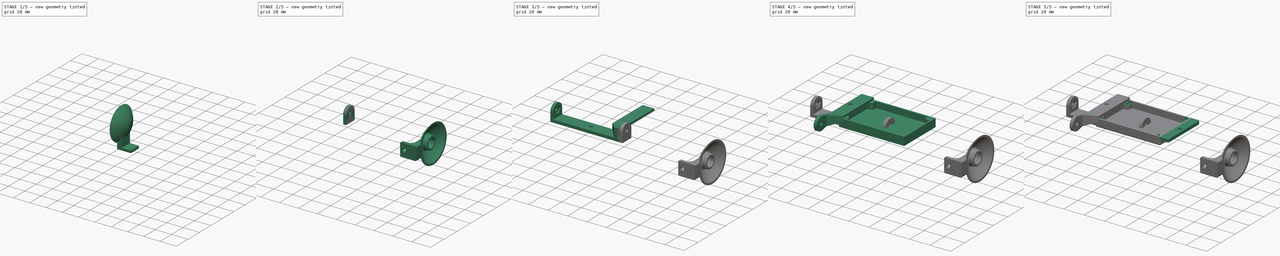
[diagram: build sequence overview — one tinted view per stage of 5, left to right]
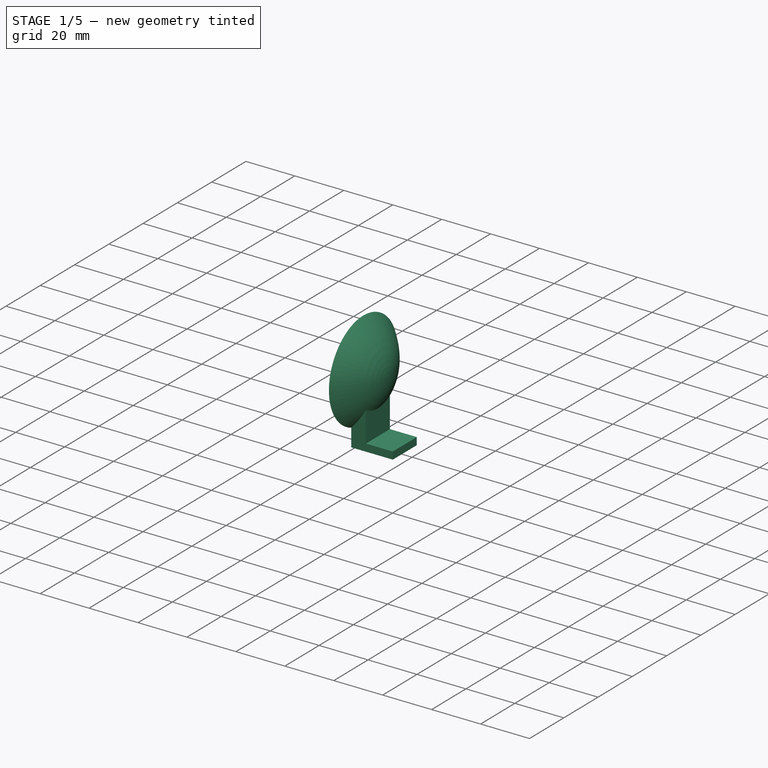
[diagram: stage 1 of 5 — iso view after this stage's code; geometry added in this stage tinted green]
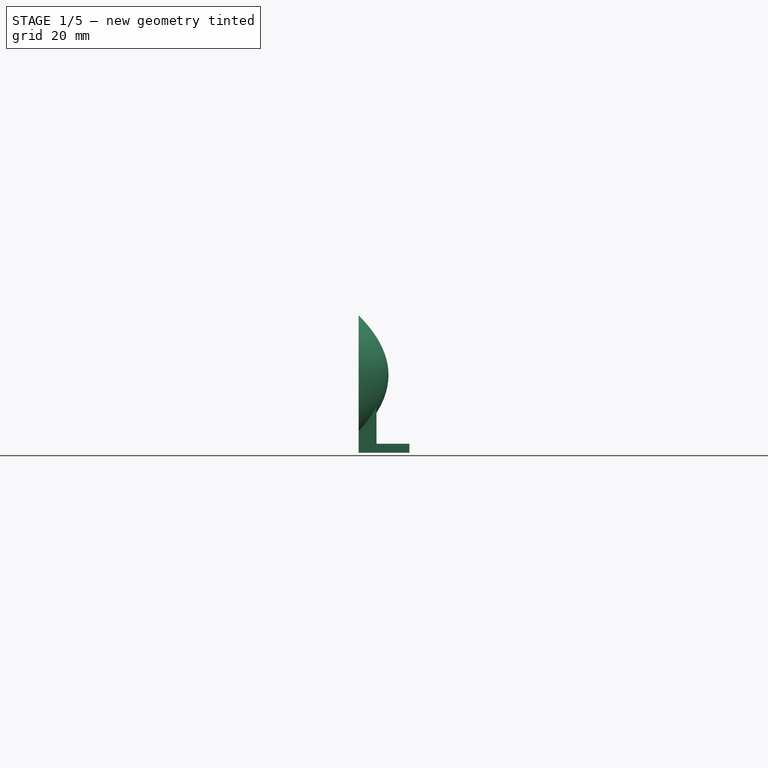
[diagram: stage 1 of 5 — front view after this stage's code; geometry added in this stage tinted green]
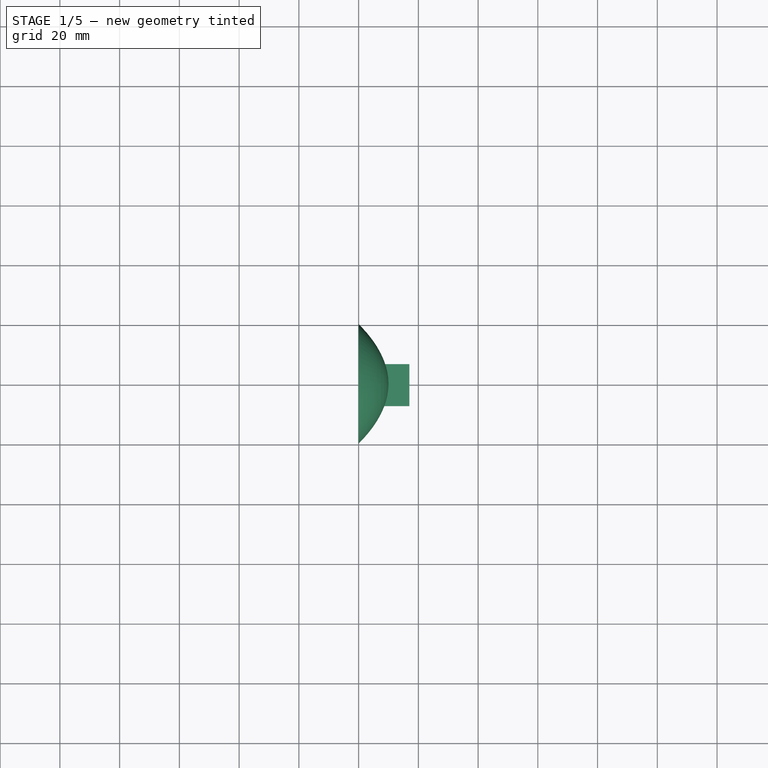
[diagram: stage 1 of 5 — top view after this stage's code; geometry added in this stage tinted green]
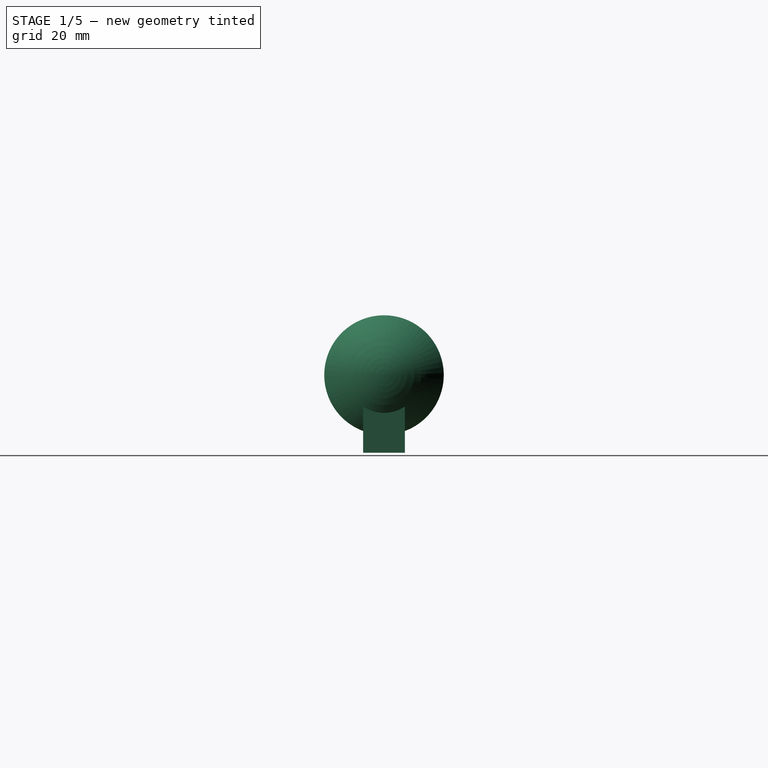
[diagram: stage 1 of 5 — right view after this stage's code; geometry added in this stage tinted green]
FCSTD DOCUMENT  (FreeCAD 0.19R24291 (Git))
Label: car
License: All rights reserved
LicenseURL: http://en.wikipedia.org/wiki/All_rights_reserved
objects: Sketcher::SketchObject×30, PartDesign::Pad×11, PartDesign::Pocket×9, PartDesign::Body×4, PartDesign::Fillet×3, Part::Mirroring×2, PartDesign::AdditiveLoft×1, PartDesign::Mirrored×1, PartDesign::Revolution×1, PartDesign::Groove×1, PartDesign::Chamfer×1
note: 91 computed .brp shape members not serialized (recipe doc carries the construction recipe); baked Part::Feature solids carry a one-line shape summary decoded from their .brp

FEATURE [PartDesign::Body] Body002  label="base"
  Group = -> [Sketch017,Sketch018,Pad008,Sketch019,Pad009,Sketch021,Pocket005,Mirrored,Sketch020,Pocket004]
  Origin = -> Origin002
  Placement = pos=(34,-39.5,6) rot=(-1,0,0;1.5708rad)
  Tip = -> Pocket004
FEATURE [Sketcher::SketchObject] Sketch022
  FullyConstrained = true
  MapMode = 5
  Placement = pos=(0,0,0) rot=(1,0,0;1.5708rad)
  Support = -> [XZ_Plane003]
  sketch-geometry (9):
    g0: ArcOfParabola CenterX=10 CenterY=0 CenterZ=0 NormalX=0 NormalY=0 NormalZ=1 Focal=10 AngleXU=-3.14159 StartAngle=-20 EndAngle=0
    g1: GeomPoint X=0 Y=-1.1e-15 Z=0
    g2: LineSegment StartX=10 StartY=0 StartZ=0 EndX=9 EndY=0 EndZ=0
    g3: LineSegment StartX=-1.8e-15 StartY=20 StartZ=0 EndX=-1.8e-15 EndY=18 EndZ=0
    g4: ArcOfParabola CenterX=9 CenterY=-1.1e-15 CenterZ=0 NormalX=0 NormalY=0 NormalZ=1 Focal=9 AngleXU=-3.14159 StartAngle=-18 EndAngle=0
    g5: GeomPoint X=0 Y=-1.1e-15 Z=0
    g6: LineSegment StartX=9 StartY=-1.1e-15 StartZ=0 EndX=0 EndY=-1.1e-15 EndZ=0
    g7: LineSegment StartX=-1.8e-15 StartY=18 StartZ=0 EndX=0 EndY=0 EndZ=0
    g8: LineSegment StartX=0 StartY=0 StartZ=0 EndX=9 EndY=0 EndZ=0
  constraints (22):
    c: InternalAlignment(g1,g0)
    c: Coincident(g0,g2)
    c: Coincident(g1,g-1)
    c: PointOnObject(g0,g-1)
    c: Coincident(g0,g0)
    c: Coincident(g3,g0)
    c: Vertical(g3)
    c: DistanceY(g-1,g3) = 20
    c: InternalAlignment(g5,g4)
    c: Coincident(g5,g6)
    c: Coincident(g4,g6)
    c: Coincident(g5,g1)
    c: Coincident(g3,g4)
    c: Coincident(g2,g4)
    c: Horizontal(g2)
    c: PointOnObject(g-1,g3)
    c: Horizontal(g6)
    c: DistanceY(g3,g3) = 2
    c: Coincident(g3,g7)
    c: Coincident(g7,g-1)
    c: Coincident(g7,g8)
    c: Coincident(g8,g2)
FEATURE [Sketcher::SketchObject] Sketch023
  ExternalGeometry = -> [Sketch022]
  FullyConstrained = true
  MapMode = 5
  Placement = pos=(0,0,0) rot=(1,0,0;1.5708rad)
  Support = -> [XZ_Plane003]
  sketch-geometry (5):
    g0: ArcOfParabola CenterX=10 CenterY=0 CenterZ=0 NormalX=0 NormalY=0 NormalZ=1 Focal=10 AngleXU=-3.14159 StartAngle=-20 EndAngle=0
    g1: GeomPoint X=0 Y=-1.2e-15 Z=0
    g2: LineSegment StartX=10 StartY=0 StartZ=0 EndX=0 EndY=-1.2e-15 EndZ=0
    g3: LineSegment StartX=0 StartY=20 StartZ=0 EndX=0 EndY=0 EndZ=0
    g4: LineSegment StartX=0 StartY=0 StartZ=0 EndX=10 EndY=0 EndZ=0
  constraints (11):
    c: InternalAlignment(g1,g0)
    c: Coincident(g1,g2)
    c: Coincident(g0,g2)
    c: Coincident(g1,g-1)
    c: Coincident(g0,g-3)
    c: Coincident(g0,g-3)
    c: Coincident(g0,g0)
    c: Coincident(g3,g0)
    c: Coincident(g3,g-1)
    c: Coincident(g3,g4)
    c: Coincident(g4,g0)
FEATURE [PartDesign::Revolution] Revolution
  Angle = 360
  Axis = (1,0,0)
  Base = (0,0,0)
  Placement = pos=(0,0,0) rot=(1,0,0;1.5708rad)
  Profile = -> Sketch023
  ReferenceAxis = -> Sketch023 [H_Axis]
FEATURE [Sketcher::SketchObject] Sketch024
  FullyConstrained = true
  MapMode = 5
  Placement = pos=(0,0,0) rot=(0.57735,0.57735,0.57735;2.0944rad)
  Support = -> [YZ_Plane003]
  sketch-geometry (7):
    g0: Circle CenterX=0 CenterY=0 CenterZ=0 NormalX=0 NormalY=0 NormalZ=1 AngleXU=0 Radius=5
    g1: Circle CenterX=0 CenterY=0 CenterZ=0 NormalX=0 NormalY=0 NormalZ=1 AngleXU=0 Radius=7
    g2: LineSegment StartX=-7 StartY=-3.23153e-05 StartZ=0 EndX=-7 EndY=-26 EndZ=0
    g3: LineSegment StartX=-7 StartY=-26 StartZ=0 EndX=7 EndY=-26 EndZ=0
    g4: LineSegment StartX=7 StartY=-26 StartZ=0 EndX=7 EndY=-3.23041e-05 EndZ=0
    g5: LineSegment StartX=-7 StartY=-23 StartZ=0 EndX=7 EndY=-23 EndZ=0
    g6: Circle CenterX=0 CenterY=-4 CenterZ=0 NormalX=0 NormalY=0 NormalZ=1 AngleXU=0 Radius=1
  constraints (21):
    c: Coincident(g0,g-1)
    c: Coincident(g1,g0)
    c: Diameter(g0) = 10
    c: Diameter(g1) = 14
    c: PointOnObject(g2,g1)
    c: Vertical(g2)
    c: Tangent(g2,g1)
    c: Coincident(g2,g3)
    c: Horizontal(g3)
    c: Coincident(g3,g4)
    c: PointOnObject(g4,g1)
    c: Tangent(g4,g1)
    c: Vertical(g4)
    c: PointOnObject(g5,g2)
    c: PointOnObject(g5,g4)
    c: Horizontal(g5)
    c: DistanceY(g3,g5) = 3
    c: DistanceY(g5,g4) = 23
    c: PointOnObject(g6,g-2)
    c: Diameter(g6) = 2
    c: Tangent(g6,g0)
FEATURE [Sketcher::SketchObject] Sketch025
  AttachmentOffset = pos=(0,0,6) rot=(0,0,1;0rad)
  ExternalGeometry = -> [Sketch024]
  FullyConstrained = true
  MapMode = 5
  Placement = pos=(6,-1.3e-15,1.3e-15) rot=(0.57735,0.57735,0.57735;2.0944rad)
  Support = -> [YZ_Plane003]
  sketch-geometry (4):
    g0: ArcOfCircle CenterX=0 CenterY=0 CenterZ=0 NormalX=0 NormalY=0 NormalZ=1 AngleXU=0 Radius=7 StartAngle=0 EndAngle=3.14159
    g1: LineSegment StartX=-7 StartY=9e-16 StartZ=0 EndX=-7 EndY=-26 EndZ=0
    g2: LineSegment StartX=-7 StartY=-26 StartZ=0 EndX=7 EndY=-26 EndZ=0
    g3: LineSegment StartX=7 StartY=-26 StartZ=0 EndX=7 EndY=0 EndZ=0
  constraints (9):
    c: Vertical(g1)
    c: Coincident(g1,g2)
    c: Horizontal(g2)
    c: Coincident(g2,g3)
    c: Vertical(g3)
    c: Coincident(g-3,g2)
    c: Coincident(g0,g-1)
    c: Tangent(g0,g3) = -1.5708
    c: Tangent(g0,g1) = -1.5708
FEATURE [PartDesign::Pad] Pad010
  BaseFeature = -> Revolution
  Direction = (1,1,1)
  Length = 6
  Length2 = 100
  Placement = pos=(0,0,0) rot=(1,0,0;1.5708rad)
  Profile = -> Sketch025
  Reversed = true
  Type = 0
FEATURE [Sketcher::SketchObject] Sketch026
  ExternalGeometry = -> [Sketch022]
  FullyConstrained = true
  MapMode = 5
  Placement = pos=(0,0,0) rot=(1,0,0;1.5708rad)
  Support = -> [XZ_Plane003]
  sketch-geometry (5):
    g0: ArcOfParabola CenterX=9 CenterY=0 CenterZ=0 NormalX=0 NormalY=0 NormalZ=1 Focal=9 AngleXU=-3.14159 StartAngle=-18 EndAngle=0
    g1: GeomPoint X=0 Y=-1.1e-15 Z=0
    g2: LineSegment StartX=9 StartY=0 StartZ=0 EndX=0 EndY=-1.1e-15 EndZ=0
    g3: LineSegment StartX=0 StartY=18 StartZ=0 EndX=0 EndY=0 EndZ=0
    g4: LineSegment StartX=0 StartY=0 StartZ=0 EndX=9 EndY=0 EndZ=0
  constraints (11):
    c: InternalAlignment(g1,g0)
    c: Coincident(g1,g2)
    c: Coincident(g0,g2)
    c: Coincident(g1,g-1)
    c: Coincident(g0,g-3)
    c: Coincident(g0,g-3)
    c: Coincident(g0,g0)
    c: Coincident(g3,g0)
    c: Coincident(g3,g-1)
    c: Coincident(g3,g4)
    c: Coincident(g4,g0)
FEATURE [PartDesign::Groove] Groove
  Angle = 360
  Axis = (1,0,0)
  Base = (0,0,0)
  BaseFeature = -> Pad010
  Placement = pos=(0,0,0) rot=(1,0,0;1.5708rad)
  Profile = -> Sketch026
  ReferenceAxis = -> Sketch026 [H_Axis]
  Reversed = true
FEATURE [Sketcher::SketchObject] Sketch027
  AttachmentOffset = pos=(0,0,8) rot=(0,0,1;0rad)
  ExternalGeometry = -> [Sketch024]
  FullyConstrained = true
  MapMode = 5
  Placement = pos=(8,-1.8e-15,1.8e-15) rot=(0.57735,0.57735,0.57735;2.0944rad)
  Support = -> [YZ_Plane003]
  sketch-geometry (1):
    g0: Circle CenterX=0 CenterY=0 CenterZ=0 NormalX=0 NormalY=0 NormalZ=1 AngleXU=0 Radius=7
  constraints (2):
    c: Coincident(g0,g-1)
    c: Equal(g0,g-3)
FEATURE [PartDesign::Pad] Pad011
  BaseFeature = -> Groove
  Direction = (1,1,1)
  Length = 6
  Length2 = 100
  Placement = pos=(0,0,0) rot=(1,0,0;1.5708rad)
  Profile = -> Sketch027
  Reversed = true
  Type = 0
FEATURE [Sketcher::SketchObject] Sketch028
  ExternalGeometry = -> [Sketch024]
  FullyConstrained = true
  MapMode = 5
  Placement = pos=(0,0,0) rot=(0.57735,0.57735,0.57735;2.0944rad)
  Support = -> [YZ_Plane003]
  sketch-geometry (1):
    g0: Circle CenterX=0 CenterY=0 CenterZ=0 NormalX=0 NormalY=0 NormalZ=1 AngleXU=0 Radius=5
  constraints (2):
    c: Coincident(g0,g-1)
    c: Equal(g0,g-3)
FEATURE [PartDesign::Pocket] Pocket006
  BaseFeature = -> Pad011
  Length = 9
  Length2 = 100
  Placement = pos=(0,0,0) rot=(1,0,0;1.5708rad)
  Profile = -> Sketch028
  Reversed = true
  Type = 0
FEATURE [Sketcher::SketchObject] Sketch029
  ExternalGeometry = -> [Sketch024]
  FullyConstrained = true
  MapMode = 5
  Placement = pos=(0,0,0) rot=(0.57735,0.57735,0.57735;2.0944rad)
  Support = -> [YZ_Plane003]
  sketch-geometry (4):
    g0: LineSegment StartX=-7 StartY=-23 StartZ=0 EndX=7 EndY=-23 EndZ=0
    g1: LineSegment StartX=7 StartY=-23 StartZ=0 EndX=7 EndY=-26 EndZ=0
    g2: LineSegment StartX=7 StartY=-26 StartZ=0 EndX=-7 EndY=-26 EndZ=0
    g3: LineSegment StartX=-7 StartY=-26 StartZ=0 EndX=-7 EndY=-23 EndZ=0
  constraints (10):
    c: Coincident(g0,g1)
    c: Coincident(g1,g2)
    c: Coincident(g2,g3)
    c: Coincident(g3,g0)
    c: Horizontal(g0)
    c: Horizontal(g2)
    c: Vertical(g1)
    c: Vertical(g3)
    c: Coincident(g0,g-3)
    c: Coincident(g1,g-4)
FEATURE [PartDesign::Pad] Pad012
  BaseFeature = -> Pocket006
  Direction = (1,1,1)
  Length = 17
  Length2 = 100
  Placement = pos=(0,0,0) rot=(1,0,0;1.5708rad)
  Profile = -> Sketch029
  Type = 0
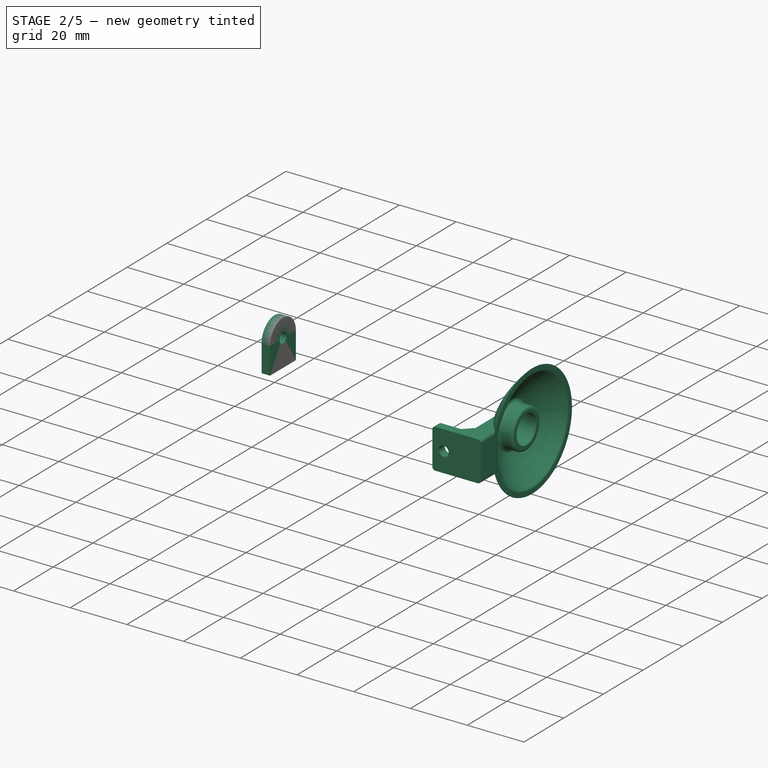
[diagram: stage 2 of 5 — iso view after this stage's code; geometry added in this stage tinted green]
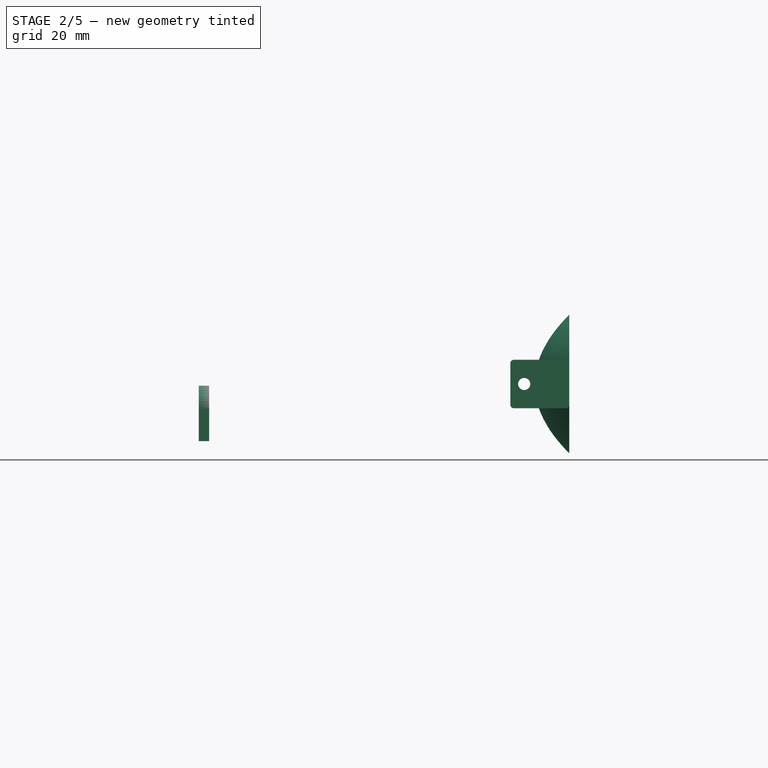
[diagram: stage 2 of 5 — front view after this stage's code; geometry added in this stage tinted green]
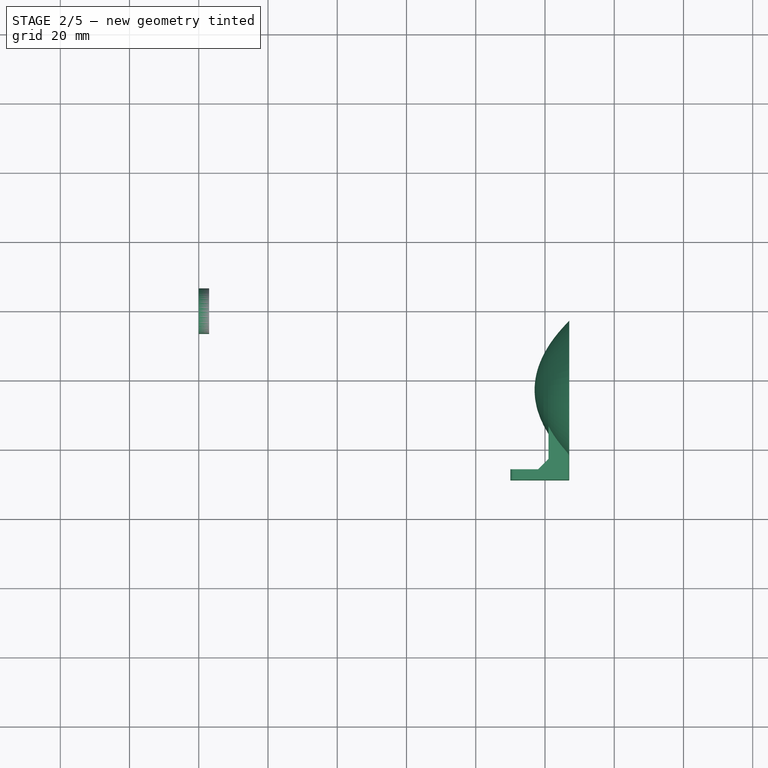
[diagram: stage 2 of 5 — top view after this stage's code; geometry added in this stage tinted green]
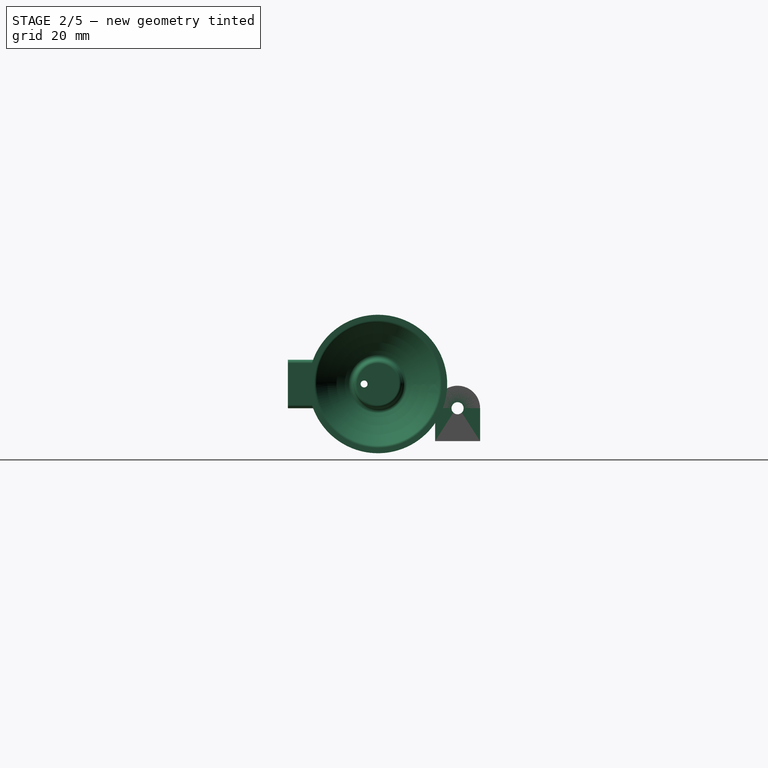
[diagram: stage 2 of 5 — right view after this stage's code; geometry added in this stage tinted green]
FEATURE [Sketcher::SketchObject] Sketch017
  FullyConstrained = true
  MapMode = 5
  Placement = pos=(0,0,0) rot=(0.57735,0.57735,0.57735;2.0944rad)
  Support = -> [YZ_Plane002]
  sketch-geometry (15):
    g0: Circle CenterX=0 CenterY=0 CenterZ=0 NormalX=0 NormalY=0 NormalZ=1 AngleXU=0 Radius=1.75
    g1: Circle CenterX=0 CenterY=0 CenterZ=0 NormalX=0 NormalY=0 NormalZ=1 AngleXU=0 Radius=6.5
    g2: LineSegment StartX=-6.5 StartY=-1.42333e-08 StartZ=0 EndX=-6.5 EndY=-6.5 EndZ=0
    g3: LineSegment StartX=6.5 StartY=9.83758e-09 StartZ=0 EndX=6.5 EndY=-6.5 EndZ=0
    g4: LineSegment StartX=-6.5 StartY=-6.5 StartZ=0 EndX=6.5 EndY=-6.5 EndZ=0
    g5: LineSegment StartX=6.5 StartY=-6.5 StartZ=0 EndX=6.5 EndY=-9.5 EndZ=0
    g6: LineSegment StartX=6.5 StartY=-9.5 StartZ=0 EndX=-6.5 EndY=-9.5 EndZ=0
    g7: LineSegment StartX=-6.5 StartY=-9.5 StartZ=0 EndX=-6.5 EndY=-6.5 EndZ=0
    g8: LineSegment StartX=1.87639 StartY=-3.25 StartZ=0 EndX=3.75278 EndY=0 EndZ=0
    g9: LineSegment StartX=3.75278 StartY=0 StartZ=0 EndX=1.87639 EndY=3.25 EndZ=0
    g10: LineSegment StartX=1.87639 StartY=3.25 StartZ=0 EndX=-1.87639 EndY=3.25 EndZ=0
    g11: LineSegment StartX=-1.87639 StartY=3.25 StartZ=0 EndX=-3.75278 EndY=0 EndZ=0
    g12: LineSegment StartX=-3.75278 StartY=0 StartZ=0 EndX=-1.87639 EndY=-3.25 EndZ=0
    g13: LineSegment StartX=-1.87639 StartY=-3.25 StartZ=0 EndX=1.87639 EndY=-3.25 EndZ=0
    g14: Circle CenterX=0 CenterY=0 CenterZ=0 NormalX=0 NormalY=0 NormalZ=1 AngleXU=0 Radius=3.75278
  constraints (38):
    c: Coincident(g0,g-1)
    c: Coincident(g1,g0)
    c: PointOnObject(g2,g1)
    c: PointOnObject(g3,g1)
    c: Coincident(g4,g2)
    c: Coincident(g4,g3)
    c: Coincident(g3,g5)
    c: Vertical(g5)
    c: Coincident(g5,g6)
    c: Horizontal(g6)
    c: Coincident(g6,g7)
    c: Coincident(g7,g2)
    c: Vertical(g7)
    c: Horizontal(g4)
    c: Vertical(g2)
    c: Vertical(g3)
    c: Tangent(g3,g1)
    c: Tangent(g2,g1)
    c: Diameter(g1) = 13
    c: Diameter(g0) = 3.5
    c: Tangent(g4,g1)
    c: DistanceY(g5,g3) = 3
    c: Coincident(g8,g9)
    c: Coincident(g9,g10)
    c: Coincident(g10,g11)
    c: Coincident(g11,g12)
    c: Coincident(g12,g13)
    c: Coincident(g13,g8)
    c: Equal(g8, g9-g13) x5
    c: PointOnObject(g8,g14)
    c: PointOnObject(g9,g14)
    c: PointOnObject(g10,g14)
    c: PointOnObject(g11,g14)
    c: PointOnObject(g12,g14)
    c: PointOnObject(g13,g14)
    c: Coincident(g14,g0)
    c: Parallel(g13,g4)
    c: Distance(g9,g8) = 6.5
FEATURE [Sketcher::SketchObject] Sketch018
  ExternalGeometry = -> [Sketch017]
  FullyConstrained = true
  MapMode = 5
  Placement = pos=(0,0,0) rot=(0.57735,0.57735,0.57735;2.0944rad)
  Support = -> [YZ_Plane002]
  sketch-geometry (5):
    g0: Circle CenterX=-1e-16 CenterY=0 CenterZ=0 NormalX=0 NormalY=0 NormalZ=1 AngleXU=0 Radius=1.75
    g1: ArcOfCircle CenterX=-1e-16 CenterY=0 CenterZ=0 NormalX=0 NormalY=0 NormalZ=1 AngleXU=0 Radius=6.5 StartAngle=6.73e-14 EndAngle=3.14159
    g2: LineSegment StartX=-6.5 StartY=1.04675e-11 StartZ=0 EndX=-6.5 EndY=-9.5 EndZ=0
    g3: LineSegment StartX=6.5 StartY=4.374e-13 StartZ=0 EndX=6.5 EndY=-9.5 EndZ=0
    g4: LineSegment StartX=6.5 StartY=-9.5 StartZ=0 EndX=-6.5 EndY=-9.5 EndZ=0
  constraints (11):
    c: Coincident(g0,g-1)
    c: Coincident(g1,g0)
    c: Horizontal(g4)
    c: Vertical(g2)
    c: Vertical(g3)
    c: Tangent(g1,g3) = 1.5708
    c: Tangent(g1,g2) = -1.5708
    c: Equal(g0,g-4)
    c: Coincident(g2,g4)
    c: Coincident(g3,g4)
    c: Coincident(g-3,g3)
FEATURE [PartDesign::Pad] Pad008
  Direction = (1,1,1)
  Length = 3
  Length2 = 100
  Placement = pos=(0,0,0) rot=(0.57735,0.57735,0.57735;2.0944rad)
  Profile = -> Sketch018
  Type = 0
FEATURE [Sketcher::SketchObject] Sketch030
  ExternalGeometry = -> [Sketch024]
  FullyConstrained = true
  MapMode = 5
  Placement = pos=(0,0,0) rot=(0.57735,0.57735,0.57735;2.0944rad)
  Support = -> [YZ_Plane003]
  sketch-geometry (1):
    g0: Circle CenterX=0 CenterY=-4 CenterZ=0 NormalX=0 NormalY=0 NormalZ=1 AngleXU=0 Radius=1
  constraints (2):
    c: Coincident(g0,g-3)
    c: Equal(g-3,g0)
FEATURE [PartDesign::Pocket] Pocket007
  BaseFeature = -> Pad012
  Length = 5
  Length2 = 100
  Placement = pos=(0,0,0) rot=(1,0,0;1.5708rad)
  Profile = -> Sketch030
  Reversed = true
  Type = 1
FEATURE [PartDesign::Chamfer] Chamfer
  Angle = 45
  Base = -> Pocket007 [Edge17]
  BaseFeature = -> Pocket007
  ChamferType = 0
  FlipDirection = false
  Placement = pos=(0,0,0) rot=(1,0,0;1.5708rad)
  Size = 3
  Size2 = 1
  SupportTransform = false
FEATURE [Sketcher::SketchObject] Sketch031
  FullyConstrained = true
  MapMode = 5
  Support = -> [XY_Plane003]
  sketch-geometry (1):
    g0: Circle CenterX=13 CenterY=0 CenterZ=0 NormalX=0 NormalY=0 NormalZ=1 AngleXU=0 Radius=1.75
  constraints (3):
    c: PointOnObject(g0,g-1)
    c: Diameter(g0) = 3.5
    c: DistanceX(g-1,g0) = 13
FEATURE [PartDesign::Pocket] Pocket008
  BaseFeature = -> Chamfer
  Length = 5
  Length2 = 100
  Placement = pos=(0,0,0) rot=(1,0,0;1.5708rad)
  Profile = -> Sketch031
  Type = 1
FEATURE [PartDesign::Fillet] Fillet002
  Base = -> Pocket008 [Edge34,Edge5,Edge52,Edge39,Edge24,Edge53,Edge57,Edge11]
  BaseFeature = -> Pocket008
  Placement = pos=(0,0,0) rot=(1,0,0;1.5708rad)
  Radius = 1
  SupportTransform = false
FEATURE [PartDesign::Body] Body003  label="ear"
  Group = -> [Sketch022,Sketch024,Sketch023,Revolution,Sketch025,Pad010,Sketch026,Groove,Sketch027,Pad011,Sketch028,Pocket006,Sketch029,Pad012,Sketch030,Pocket007,Chamfer,Sketch031,Pocket008,Fillet002]
  Origin = -> Origin003
  Placement = pos=(-107,-23,7) rot=(-1,0,0;1.5708rad)
  Tip = -> Fillet002
FEATURE [Part::Mirroring] Part__Mirroring001  label="ear (Mirror #2)"
  Base = (0,0,0)
  Normal = (1,0,0)
  Source = -> Body003
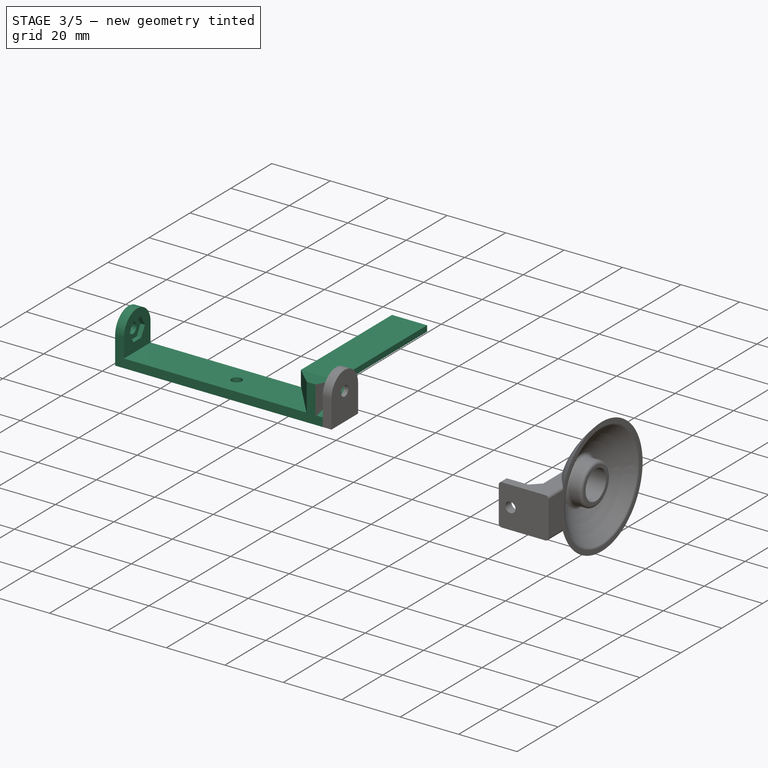
[diagram: stage 3 of 5 — iso view after this stage's code; geometry added in this stage tinted green]
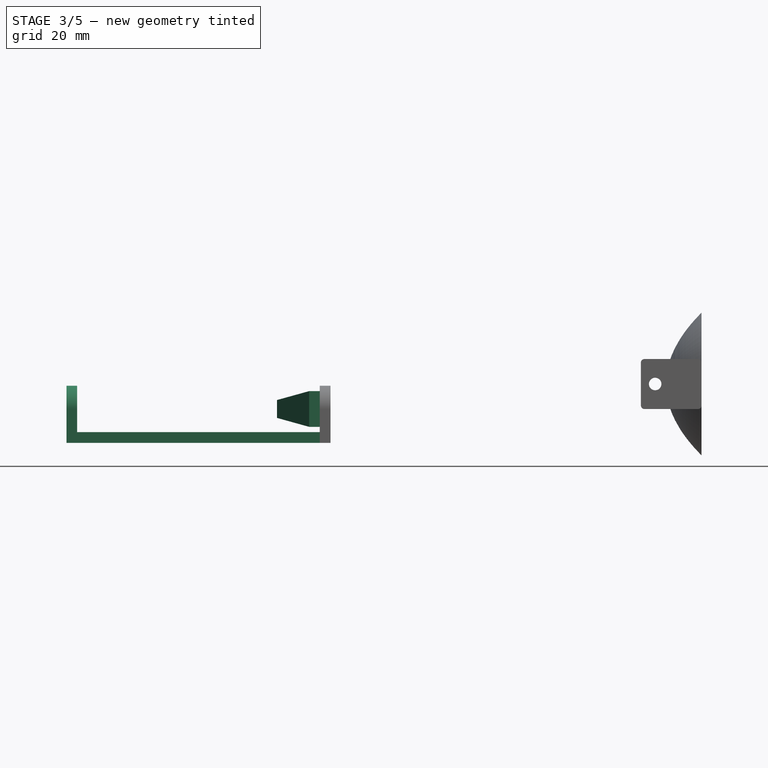
[diagram: stage 3 of 5 — front view after this stage's code; geometry added in this stage tinted green]
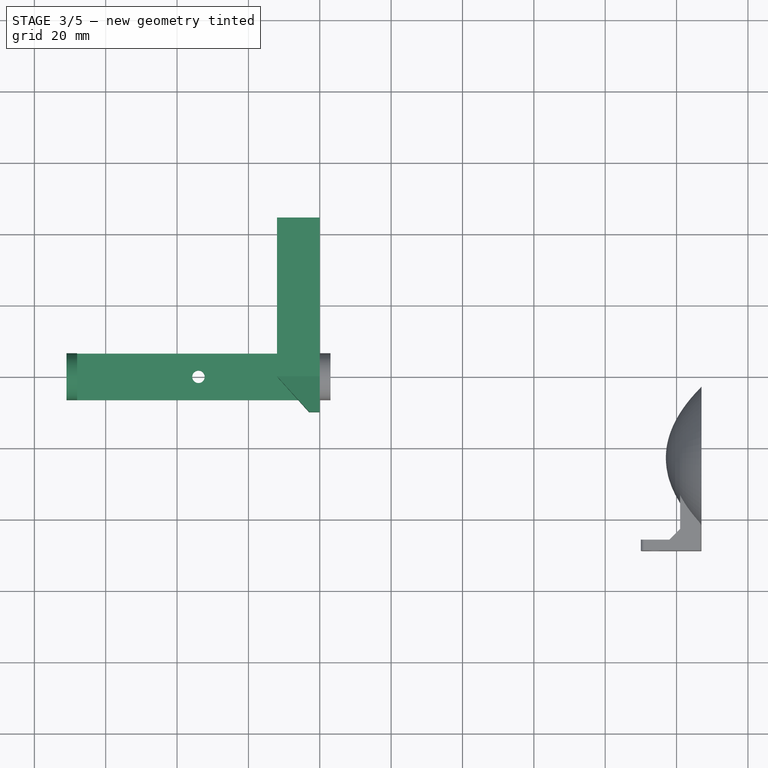
[diagram: stage 3 of 5 — top view after this stage's code; geometry added in this stage tinted green]
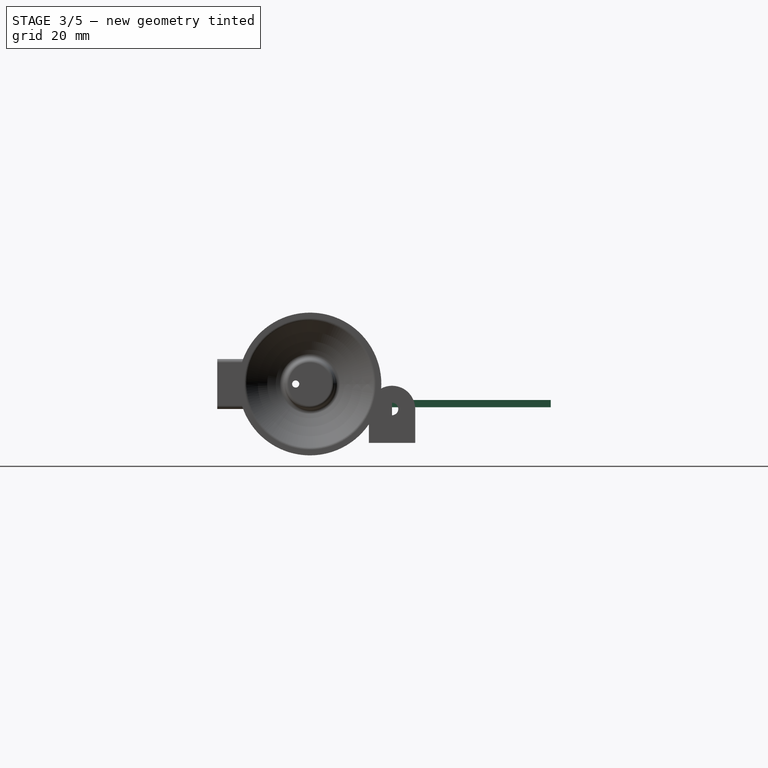
[diagram: stage 3 of 5 — right view after this stage's code; geometry added in this stage tinted green]
FEATURE [PartDesign::Body] Body  label="brain"
  Group = -> [Sketch003,Sketch,Pad,Sketch004,Pad001,Sketch005,Pocket,Sketch006,Pad002,Sketch007,Pocket001,Sketch008,Pad003,Sketch009,Pocket002,Fillet]
  Origin = -> Origin
  Tip = -> Fillet
FEATURE [Sketcher::SketchObject] Sketch010
  FullyConstrained = true
  MapMode = 5
  Placement = pos=(0,0,0) rot=(1,0,0;1.5708rad)
  Support = -> [XZ_Plane001]
  sketch-geometry (7):
    g0: LineSegment StartX=-12 StartY=2.5 StartZ=0 EndX=0 EndY=2.5 EndZ=0
    g1: LineSegment StartX=0 StartY=2.5 StartZ=0 EndX=0 EndY=-2.5 EndZ=0
    g2: LineSegment StartX=0 StartY=-2.5 StartZ=0 EndX=-12 EndY=-2.5 EndZ=0
    g3: LineSegment StartX=-12 StartY=-2.5 StartZ=0 EndX=-12 EndY=2.5 EndZ=0
    g4: LineSegment StartX=-12 StartY=2.5 StartZ=0 EndX=0 EndY=0 EndZ=0
    g5: LineSegment StartX=0 StartY=0 StartZ=0 EndX=-12 EndY=-2.5 EndZ=0
    g6: LineSegment StartX=-12 StartY=0.5 StartZ=0 EndX=0 EndY=0.5 EndZ=0
  constraints (20):
    c: Coincident(g0,g1)
    c: Coincident(g1,g2)
    c: Coincident(g2,g3)
    c: Coincident(g3,g0)
    c: Horizontal(g0)
    c: Horizontal(g2)
    c: Vertical(g1)
    c: Vertical(g3)
    c: Coincident(g4,g0)
    c: Coincident(g4,g-1)
    c: Coincident(g5,g2)
    c: DistanceY(g1,g1) = 5
    c: DistanceX(g0,g0) = 12
    c: PointOnObject(g6,g3)
    c: PointOnObject(g6,g1)
    c: Horizontal(g6)
    c: DistanceY(g6,g0) = 2
    c: PointOnObject(g-1,g1)
    c: Equal(g4,g5)
    c: Coincident(g5,g-1)
FEATURE [Sketcher::SketchObject] Sketch011
  AttachmentOffset = pos=(0,0,15) rot=(0,0,1;0rad)
  FullyConstrained = true
  MapMode = 5
  Placement = pos=(0,-15,-3.3e-15) rot=(1,0,0;1.5708rad)
  Support = -> [XZ_Plane001]
  sketch-geometry (8):
    g0: LineSegment StartX=-1.5 StartY=5 StartZ=0 EndX=1.5 EndY=5 EndZ=0
    g1: LineSegment StartX=1.5 StartY=5 StartZ=0 EndX=1.5 EndY=-5 EndZ=0
    g2: LineSegment StartX=1.5 StartY=-5 StartZ=0 EndX=-1.5 EndY=-5 EndZ=0
    g3: LineSegment StartX=-1.5 StartY=-5 StartZ=0 EndX=-1.5 EndY=5 EndZ=0
    g4: LineSegment StartX=-1.5 StartY=5 StartZ=0 EndX=0 EndY=0 EndZ=0
    g5: LineSegment StartX=0 StartY=0 StartZ=0 EndX=1.5 EndY=-5 EndZ=0
    g6: LineSegment StartX=1.5 StartY=5 StartZ=0 EndX=0 EndY=0 EndZ=0
    g7: LineSegment StartX=0 StartY=0 StartZ=0 EndX=-1.5 EndY=-5 EndZ=0
  constraints (20):
    c: Coincident(g0,g1)
    c: Coincident(g1,g2)
    c: Coincident(g2,g3)
    c: Coincident(g3,g0)
    c: Horizontal(g0)
    c: Horizontal(g2)
    c: Vertical(g1)
    c: Vertical(g3)
    c: Coincident(g0,g4)
    c: Coincident(g4,g-1)
    c: Coincident(g4,g5)
    c: Coincident(g5,g1)
    c: Coincident(g0,g6)
    c: Coincident(g6,g-1)
    c: Coincident(g6,g7)
    c: Coincident(g7,g2)
    c: Equal(g6,g7)
    c: Equal(g4,g5)
    c: DistanceY(g1,g1) = 10
    c: DistanceX(g0,g0) = 3
FEATURE [Sketcher::SketchObject] Sketch013
  ExternalGeometry = -> [Sketch010]
  FullyConstrained = true
  MapMode = 5
  Placement = pos=(0,0,0) rot=(1,0,0;1.5708rad)
  Support = -> [XZ_Plane001]
  sketch-geometry (4):
    g0: LineSegment StartX=-12 StartY=2.5 StartZ=0 EndX=0 EndY=2.5 EndZ=0
    g1: LineSegment StartX=0 StartY=2.5 StartZ=0 EndX=0 EndY=0.5 EndZ=0
    g2: LineSegment StartX=0 StartY=0.5 StartZ=0 EndX=-12 EndY=0.5 EndZ=0
    g3: LineSegment StartX=-12 StartY=0.5 StartZ=0 EndX=-12 EndY=2.5 EndZ=0
  constraints (10):
    c: Coincident(g0,g1)
    c: Coincident(g1,g2)
    c: Coincident(g2,g3)
    c: Coincident(g3,g0)
    c: Horizontal(g0)
    c: Horizontal(g2)
    c: Vertical(g1)
    c: Vertical(g3)
    c: Coincident(g0,g-3)
    c: Coincident(g1,g-4)
FEATURE [PartDesign::Pad] Pad006
  Direction = (1,1,1)
  Length = 44.5
  Length2 = 100
  Placement = pos=(0,0,0) rot=(1,0,0;1.5708rad)
  Profile = -> Sketch013
  Reversed = true
  Type = 0
FEATURE [Sketcher::SketchObject] Sketch014
  ExternalGeometry = -> [Sketch010]
  FullyConstrained = true
  MapMode = 5
  Placement = pos=(0,0,0) rot=(1,0,0;1.5708rad)
  Support = -> [XZ_Plane001]
  sketch-geometry (4):
    g0: LineSegment StartX=-12 StartY=2.5 StartZ=0 EndX=0 EndY=2.5 EndZ=0
    g1: LineSegment StartX=0 StartY=2.5 StartZ=0 EndX=0 EndY=-2.5 EndZ=0
    g2: LineSegment StartX=0 StartY=-2.5 StartZ=0 EndX=-12 EndY=-2.5 EndZ=0
    g3: LineSegment StartX=-12 StartY=-2.5 StartZ=0 EndX=-12 EndY=2.5 EndZ=0
  constraints (10):
    c: Coincident(g0,g1)
    c: Coincident(g1,g2)
    c: Coincident(g2,g3)
    c: Coincident(g3,g0)
    c: Horizontal(g0)
    c: Horizontal(g2)
    c: Vertical(g1)
    c: Vertical(g3)
    c: Coincident(g0,g-3)
    c: Coincident(g1,g-4)
FEATURE [Sketcher::SketchObject] Sketch015
  AttachmentOffset = pos=(0,0,10) rot=(0,0,1;0rad)
  FullyConstrained = true
  MapMode = 5
  Placement = pos=(0,-10,-2.2e-15) rot=(1,0,0;1.5708rad)
  Support = -> [XZ_Plane001]
  sketch-geometry (6):
    g0: LineSegment StartX=0 StartY=5 StartZ=0 EndX=-3 EndY=5 EndZ=0
    g1: LineSegment StartX=-3 StartY=5 StartZ=0 EndX=-3 EndY=-5 EndZ=0
    g2: LineSegment StartX=-3 StartY=-5 StartZ=0 EndX=0 EndY=-5 EndZ=0
    g3: LineSegment StartX=0 StartY=-5 StartZ=0 EndX=0 EndY=5 EndZ=0
    g4: LineSegment StartX=-3 StartY=5 StartZ=0 EndX=-9e-16 EndY=0 EndZ=0
    g5: LineSegment StartX=0 StartY=0 StartZ=0 EndX=-3 EndY=-5 EndZ=0
  constraints (16):
    c: Coincident(g0,g1)
    c: Coincident(g1,g2)
    c: Coincident(g2,g3)
    c: Coincident(g3,g0)
    c: Horizontal(g0)
    c: Horizontal(g2)
    c: Vertical(g1)
    c: Vertical(g3)
    c: PointOnObject(g0,g-2)
    c: DistanceX(g0,g0) = 3
    c: DistanceY(g1,g1) = 10
    c: Coincident(g4,g0)
    c: Coincident(g4,g-1)
    c: Coincident(g5,g-1)
    c: Coincident(g5,g1)
    c: Equal(g4,g5)
FEATURE [PartDesign::AdditiveLoft] AdditiveLoft
  BaseFeature = -> Pad006
  Closed = false
  Placement = pos=(0,0,0) rot=(1,0,0;1.5708rad)
  Profile = -> Sketch015
  Ruled = false
  Sections = -> [Sketch014]
FEATURE [Sketcher::SketchObject] Sketch019
  ExternalGeometry = -> [Sketch017]
  FullyConstrained = true
  MapMode = 5
  Placement = pos=(0,0,0) rot=(0.57735,0.57735,0.57735;2.0944rad)
  Support = -> [YZ_Plane002]
  sketch-geometry (4):
    g0: LineSegment StartX=-6.5 StartY=-6.5 StartZ=0 EndX=6.5 EndY=-6.5 EndZ=0
    g1: LineSegment StartX=6.5 StartY=-6.5 StartZ=0 EndX=6.5 EndY=-9.5 EndZ=0
    g2: LineSegment StartX=6.5 StartY=-9.5 StartZ=0 EndX=-6.5 EndY=-9.5 EndZ=0
    g3: LineSegment StartX=-6.5 StartY=-9.5 StartZ=0 EndX=-6.5 EndY=-6.5 EndZ=0
  constraints (10):
    c: Coincident(g0,g1)
    c: Coincident(g1,g2)
    c: Coincident(g2,g3)
    c: Coincident(g3,g0)
    c: Horizontal(g0)
    c: Horizontal(g2)
    c: Vertical(g1)
    c: Vertical(g3)
    c: Coincident(g0,g-3)
    c: Coincident(g1,g-4)
FEATURE [PartDesign::Pad] Pad009
  BaseFeature = -> Pad008
  Direction = (1,1,1)
  Length = 34
  Length2 = 100
  Placement = pos=(0,0,0) rot=(0.57735,0.57735,0.57735;2.0944rad)
  Profile = -> Sketch019
  Reversed = true
  Type = 0
  expr: Length = 74mm / 2 - 3mm
FEATURE [Sketcher::SketchObject] Sketch021
  ExternalGeometry = -> [Sketch017]
  FullyConstrained = true
  MapMode = 5
  Placement = pos=(0,0,0) rot=(0.57735,0.57735,0.57735;2.0944rad)
  Support = -> [YZ_Plane002]
  sketch-geometry (7):
    g0: LineSegment StartX=1.87639 StartY=3.25 StartZ=0 EndX=-1.87639 EndY=3.25 EndZ=0
    g1: LineSegment StartX=-1.87639 StartY=3.25 StartZ=0 EndX=-3.75278 EndY=-4e-16 EndZ=0
    g2: LineSegment StartX=-3.75278 StartY=-5e-16 StartZ=0 EndX=-1.87639 EndY=-3.25 EndZ=0
    g3: LineSegment StartX=-1.87639 StartY=-3.25 StartZ=0 EndX=1.87639 EndY=-3.25 EndZ=0
    g4: LineSegment StartX=1.87639 StartY=-3.25 StartZ=0 EndX=3.75278 EndY=0 EndZ=0
    g5: LineSegment StartX=3.75278 StartY=0 StartZ=0 EndX=1.87639 EndY=3.25 EndZ=0
    g6: Circle CenterX=0 CenterY=0 CenterZ=0 NormalX=0 NormalY=0 NormalZ=1 AngleXU=0 Radius=3.75278
  constraints (15):
    c: Coincident(g0,g1)
    c: Coincident(g1,g2)
    c: Coincident(g2,g3)
    c: Coincident(g3,g4)
    c: Coincident(g4,g5)
    c: Coincident(g5,g0)
    c: Equal(g0, g1-g5) x5
    c: PointOnObject(g0,g6)
    c: PointOnObject(g1,g6)
    c: PointOnObject(g2,g6)
    c: PointOnObject(g3,g6)
    c: PointOnObject(g4,g6)
    c: PointOnObject(g5,g6)
    c: Coincident(g6,g-1)
    c: Coincident(g5,g-3)
FEATURE [PartDesign::Pocket] Pocket005
  BaseFeature = -> Pad009
  Length = 1.5
  Length2 = 100
  Placement = pos=(0,0,0) rot=(0.57735,0.57735,0.57735;2.0944rad)
  Profile = -> Sketch021
  Reversed = true
  Type = 0
FEATURE [PartDesign::Mirrored] Mirrored
  BaseFeature = -> Pocket005
  MirrorPlane = -> Pad009 [Face12]
  Originals = -> [Pad009,Pad008,Pocket005]
  Placement = pos=(0,0,0) rot=(0.57735,0.57735,0.57735;2.0944rad)
FEATURE [Sketcher::SketchObject] Sketch020
  ExternalGeometry = -> [Mirrored]
  FullyConstrained = true
  MapMode = 5
  Support = -> [XY_Plane002]
  sketch-geometry (1):
    g0: Circle CenterX=-34 CenterY=0 CenterZ=0 NormalX=0 NormalY=0 NormalZ=1 AngleXU=0 Radius=1.75
  constraints (3):
    c: Diameter(g0) = 3.5
    c: PointOnObject(g0,g-4)
    c: PointOnObject(g0,g-1)
FEATURE [PartDesign::Pocket] Pocket004
  BaseFeature = -> Mirrored
  Length = 5
  Length2 = 100
  Placement = pos=(0,0,0) rot=(0.57735,0.57735,0.57735;2.0944rad)
  Profile = -> Sketch020
  Type = 1
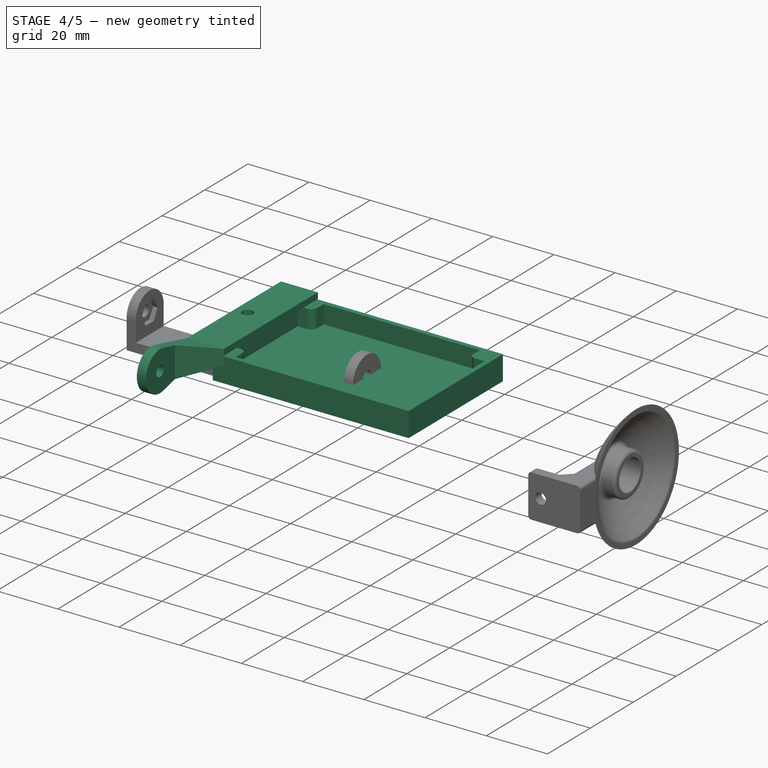
[diagram: stage 4 of 5 — iso view after this stage's code; geometry added in this stage tinted green]
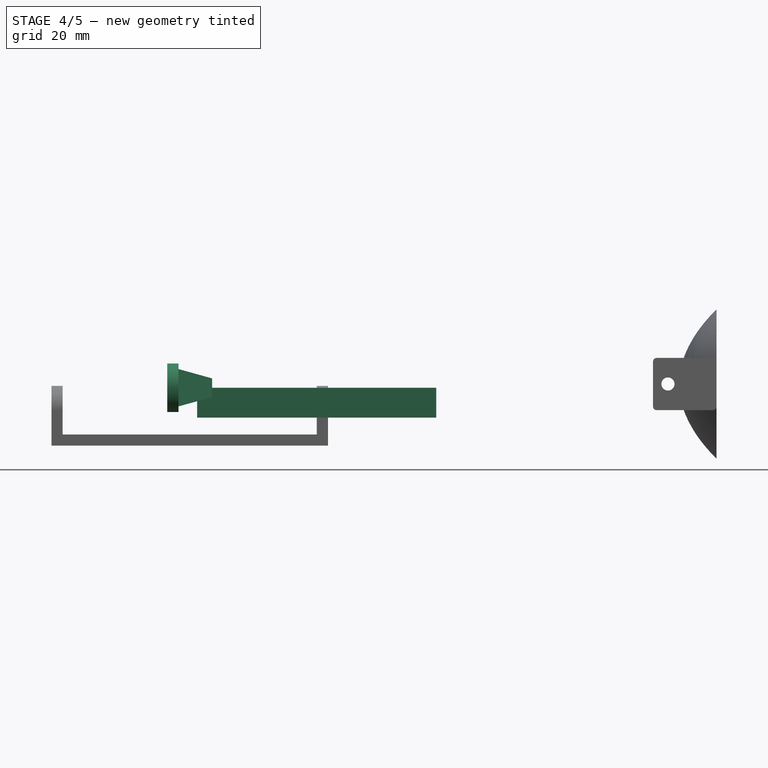
[diagram: stage 4 of 5 — front view after this stage's code; geometry added in this stage tinted green]
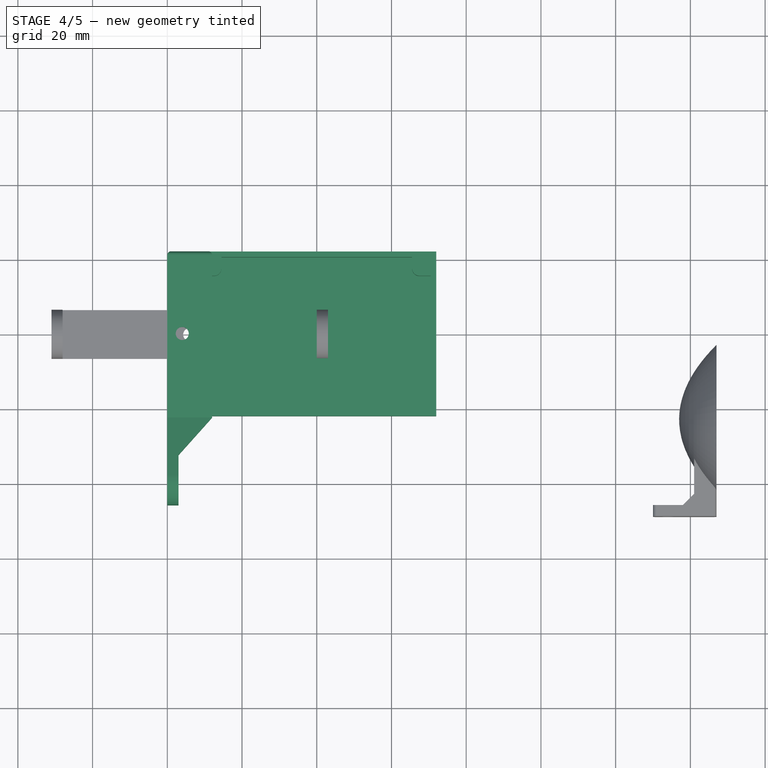
[diagram: stage 4 of 5 — top view after this stage's code; geometry added in this stage tinted green]
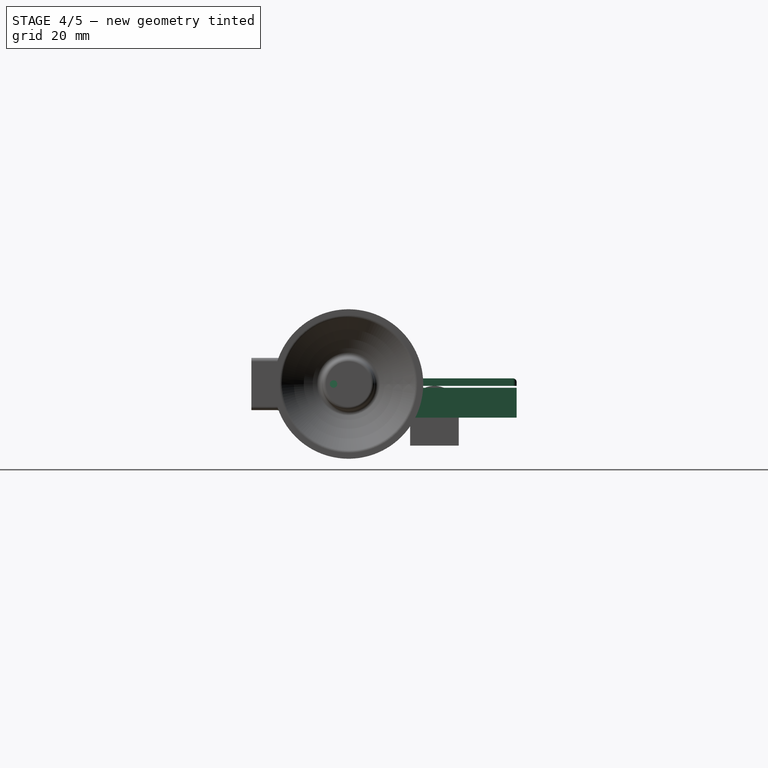
[diagram: stage 4 of 5 — right view after this stage's code; geometry added in this stage tinted green]
FEATURE [Sketcher::SketchObject] Sketch003
  FullyConstrained = true
  sketch-geometry (52):
    g0: LineSegment StartX=-30.5 StartY=20.5 StartZ=0 EndX=30.5 EndY=20.5 EndZ=0
    g1: LineSegment StartX=30.5 StartY=20.5 StartZ=0 EndX=30.5 EndY=-20.5 EndZ=0
    g2: LineSegment StartX=30.5 StartY=-20.5 StartZ=0 EndX=-30.5 EndY=-20.5 EndZ=0
    g3: LineSegment StartX=-30.5 StartY=-20.5 StartZ=0 EndX=-30.5 EndY=20.5 EndZ=0
    g4: LineSegment StartX=-40 StartY=22 StartZ=0 EndX=40 EndY=22 EndZ=0
    g5: LineSegment StartX=40 StartY=22 StartZ=0 EndX=40 EndY=-22 EndZ=0
    g6: LineSegment StartX=40 StartY=-22 StartZ=0 EndX=-40 EndY=-22 EndZ=0
    g7: LineSegment StartX=-40 StartY=-22 StartZ=0 EndX=-40 EndY=22 EndZ=0
    g8: LineSegment StartX=-40 StartY=22 StartZ=0 EndX=-30.5 EndY=20.5 EndZ=0
    g9: LineSegment StartX=-30.5 StartY=20.5 StartZ=0 EndX=0 EndY=0 EndZ=0
    g10: LineSegment StartX=0 StartY=0 StartZ=0 EndX=30.5 EndY=-20.5 EndZ=0
    g11: LineSegment StartX=30.5 StartY=-20.5 StartZ=0 EndX=40 EndY=-22 EndZ=0
    g12: LineSegment StartX=40 StartY=22 StartZ=0 EndX=30.5 EndY=20.5 EndZ=0
    g13: LineSegment StartX=30.5 StartY=20.5 StartZ=0 EndX=0 EndY=0 EndZ=0
    g14: LineSegment StartX=0 StartY=0 StartZ=0 EndX=-30.5 EndY=-20.5 EndZ=0
    g15: LineSegment StartX=-30.5 StartY=-20.5 StartZ=0 EndX=-40 EndY=-22 EndZ=0
    g16: ArcOfCircle CenterX=-27.5 CenterY=17.5 CenterZ=0 NormalX=0 NormalY=0 NormalZ=1 AngleXU=0 Radius=2 StartAngle=4.71239 EndAngle=6.28319
    g17: LineSegment StartX=-25.5 StartY=17.5 StartZ=0 EndX=-25.5 EndY=20.5 EndZ=0
    g18: LineSegment StartX=-27.5 StartY=15.5 StartZ=0 EndX=-30.5 EndY=15.5 EndZ=0
    g19: ArcOfCircle CenterX=27.5 CenterY=17.5 CenterZ=0 NormalX=0 NormalY=0 NormalZ=1 AngleXU=0 Radius=2 StartAngle=3.14159 EndAngle=4.71239
    g20: LineSegment StartX=25.5 StartY=17.5 StartZ=0 EndX=25.5 EndY=20.5 EndZ=0
    g21: LineSegment StartX=27.5 StartY=15.5 StartZ=0 EndX=30.5 EndY=15.5 EndZ=0
    g22: ArcOfCircle CenterX=-27.5 CenterY=-17.5 CenterZ=0 NormalX=0 NormalY=0 NormalZ=1 AngleXU=0 Radius=2 StartAngle=1e-16 EndAngle=1.5708
    g23: LineSegment StartX=-25.5 StartY=-17.5 StartZ=0 EndX=-25.5 EndY=-20.5 EndZ=0
    g24: LineSegment StartX=-27.5 StartY=-15.5 StartZ=0 EndX=-30.5 EndY=-15.5 EndZ=0
    g25: ArcOfCircle CenterX=27.5 CenterY=-17.5 CenterZ=0 NormalX=0 NormalY=0 NormalZ=1 AngleXU=0 Radius=2 StartAngle=1.5708 EndAngle=3.14159
    g26: LineSegment StartX=25.5 StartY=-17.5 StartZ=0 EndX=25.5 EndY=-20.5 EndZ=0
    g27: LineSegment StartX=27.5 StartY=-15.5 StartZ=0 EndX=30.5 EndY=-15.5 EndZ=0
    g28: Circle CenterX=-27.5 CenterY=17.5 CenterZ=0 NormalX=0 NormalY=0 NormalZ=1 AngleXU=0 Radius=0.75
    g29: Circle CenterX=-27.5 CenterY=-17.5 CenterZ=0 NormalX=0 NormalY=0 NormalZ=1 AngleXU=0 Radius=0.75
    g30: Circle CenterX=27.5 CenterY=-17.5 CenterZ=0 NormalX=0 NormalY=0 NormalZ=1 AngleXU=0 Radius=0.75
    g31: Circle CenterX=27.5 CenterY=17.5 CenterZ=0 NormalX=0 NormalY=0 NormalZ=1 AngleXU=0 Radius=0.75
    g32: Circle CenterX=-36 CenterY=0 CenterZ=0 NormalX=0 NormalY=0 NormalZ=1 AngleXU=0 Radius=1.75
    g33: Circle CenterX=36 CenterY=0 CenterZ=0 NormalX=0 NormalY=0 NormalZ=1 AngleXU=0 Radius=1.75
    g34: LineSegment StartX=-32 StartY=22 StartZ=0 EndX=-32 EndY=-22 EndZ=0
    g35: LineSegment StartX=32 StartY=22 StartZ=0 EndX=32 EndY=-22 EndZ=0
    g36: LineSegment StartX=-40 StartY=22 StartZ=0 EndX=-36 EndY=0 EndZ=0
    g37: LineSegment StartX=-36 StartY=0 StartZ=0 EndX=-32 EndY=-22 EndZ=0
    g38: LineSegment StartX=-32.75 StartY=1.87639 StartZ=0 EndX=-36 EndY=3.75278 EndZ=0
    g39: LineSegment StartX=-36 StartY=3.75278 StartZ=0 EndX=-39.25 EndY=1.87639 EndZ=0
    g40: LineSegment StartX=-39.25 StartY=1.87639 StartZ=0 EndX=-39.25 EndY=-1.87639 EndZ=0
    g41: LineSegment StartX=-39.25 StartY=-1.87639 StartZ=0 EndX=-36 EndY=-3.75278 EndZ=0
    g42: LineSegment StartX=-36 StartY=-3.75278 StartZ=0 EndX=-32.75 EndY=-1.87639 EndZ=0
    g43: LineSegment StartX=-32.75 StartY=-1.87639 StartZ=0 EndX=-32.75 EndY=1.87639 EndZ=0
    g44: Circle CenterX=-36 CenterY=0 CenterZ=0 NormalX=0 NormalY=0 NormalZ=1 AngleXU=0 Radius=3.75278
    g45: LineSegment StartX=39.25 StartY=1.87639 StartZ=0 EndX=36 EndY=3.75278 EndZ=0
    g46: LineSegment StartX=36 StartY=3.75278 StartZ=0 EndX=32.75 EndY=1.87639 EndZ=0
    g47: LineSegment StartX=32.75 StartY=1.87639 StartZ=0 EndX=32.75 EndY=-1.87639 EndZ=0
    g48: LineSegment StartX=32.75 StartY=-1.87639 StartZ=0 EndX=36 EndY=-3.75278 EndZ=0
    g49: LineSegment StartX=36 StartY=-3.75278 StartZ=0 EndX=39.25 EndY=-1.87639 EndZ=0
    g50: LineSegment StartX=39.25 StartY=-1.87639 StartZ=0 EndX=39.25 EndY=1.87639 EndZ=0
    g51: Circle CenterX=36 CenterY=0 CenterZ=0 NormalX=0 NormalY=0 NormalZ=1 AngleXU=0 Radius=3.75278
  constraints (129):
    c: Coincident(g0,g1)
    c: Coincident(g1,g2)
    c: Coincident(g2,g3)
    c: Coincident(g3,g0)
    c: Horizontal(g0)
    c: Horizontal(g2)
    c: Vertical(g1)
    c: Vertical(g3)
    c: Coincident(g4,g5)
    c: Coincident(g5,g6)
    c: Coincident(g6,g7)
    c: Coincident(g7,g4)
    c: Horizontal(g4)
    c: Horizontal(g6)
    c: Vertical(g5)
    c: Vertical(g7)
    c: Coincident(g8,g4)
    c: Coincident(g8,g0)
    c: Coincident(g9,g0)
    c: Coincident(g9,g-1)
    c: Coincident(g10,g-1)
    c: Coincident(g10,g1)
    c: Coincident(g11,g1)
    c: Coincident(g11,g5)
    c: Coincident(g12,g4)
    c: Coincident(g12,g0)
    c: Coincident(g13,g0)
    c: Coincident(g13,g-1)
    c: Coincident(g14,g-1)
    c: Coincident(g14,g2)
    c: Coincident(g15,g2)
    c: Coincident(g15,g6)
    c: Equal(g9,g10)
    c: Equal(g13,g14)
    c: Equal(g12,g15)
    c: Equal(g8,g11)
    c: DistanceX(g0,g0) = 61
    c: DistanceX(g4,g4) = 80
    c: DistanceY(g1,g1) = 41
    c: DistanceY(g5,g5) = 44
    c: Radius(g16) = 2
    c: PointOnObject(g17,g0)
    c: PointOnObject(g18,g3)
    c: Horizontal(g18)
    c: Vertical(g17)
    c: Tangent(g17,g16) = -1.5708
    c: Tangent(g18,g16) = 1.5708
    c: Horizontal(g21)
    c: Vertical(g20)
    c: Tangent(g20,g19) = 1.5708
    c: Tangent(g21,g19) = -1.5708
    c: Horizontal(g24)
    c: Vertical(g23)
    c: Tangent(g23,g22) = 1.5708
    c: Tangent(g24,g22) = -1.5708
    c: Horizontal(g27)
    c: Vertical(g26)
    c: Tangent(g26,g25) = -1.5708
    c: Tangent(g27,g25) = 1.5708
    c: Equal(g16,g19)
    c: Equal(g19,g25)
    c: Equal(g25,g22)
    c: Symmetric(g19,g16,g-2)
    c: Symmetric(g16,g22,g-1)
    c: Symmetric(g22,g25,g-2)
    c: DistanceY(g25,g19) = 35
    c: DistanceX(g16,g19) = 55
    c: PointOnObject(g23,g2)
    c: PointOnObject(g24,g3)
    c: PointOnObject(g26,g2)
    c: PointOnObject(g27,g1)
    c: PointOnObject(g21,g1)
    c: PointOnObject(g20,g0)
    c: Coincident(g28,g16)
    c: Coincident(g29,g22)
    c: Coincident(g30,g25)
    c: Coincident(g31,g19)
    c: Equal(g31,g30)
    c: Equal(g30,g29)
    c: Equal(g29,g28)
    c: Diameter(g28) = 1.5
    c: PointOnObject(g32,g-1)
    c: Diameter(g32) = 3.5
    c: Equal(g32,g33)
    c: Symmetric(g32,g33,g-2)
    c: PointOnObject(g34,g4)
    c: PointOnObject(g34,g6)
    c: Vertical(g34)
    c: Vertical(g35)
    c: Symmetric(g35,g34,g-2)
    c: DistanceX(g34,g35) = 64
    c: PointOnObject(g35,g6)
    c: Coincident(g36,g4)
    c: Coincident(g36,g32)
    c: Coincident(g37,g32)
    c: Coincident(g37,g34)
    c: Equal(g37,g36)
    c: Coincident(g38,g39)
    c: Coincident(g39,g40)
    c: Coincident(g40,g41)
    c: Coincident(g41,g42)
    c: Coincident(g42,g43)
    c: Coincident(g43,g38)
    c: Equal(g38, g39-g43) x5
    c: PointOnObject(g38,g44)
    c: PointOnObject(g39,g44)
    c: PointOnObject(g40,g44)
    c: PointOnObject(g41,g44)
    c: PointOnObject(g42,g44)
    c: PointOnObject(g43,g44)
    c: Coincident(g44,g32)
    c: Coincident(g45,g46)
    c: Coincident(g46,g47)
    c: Coincident(g47,g48)
    c: Coincident(g48,g49)
    c: Coincident(g49,g50)
    c: Coincident(g50,g45)
    c: Equal(g45, g46-g50) x5
    c: PointOnObject(g45,g51)
    c: PointOnObject(g46,g51)
    c: PointOnObject(g47,g51)
    c: PointOnObject(g48,g51)
    c: PointOnObject(g49,g51)
    c: PointOnObject(g50,g51)
    c: Coincident(g51,g33)
    c: Parallel(g47,g40)
    c: Distance(g39,g38) = 6.5
    c: Parallel(g40,g7)
    c: Equal(g51,g44)
FEATURE [Sketcher::SketchObject] Sketch
  ExternalGeometry = -> [Sketch003]
  FullyConstrained = true
  MapMode = 5
  Support = -> [XY_Plane]
  sketch-geometry (4):
    g0: LineSegment StartX=-32 StartY=22 StartZ=0 EndX=32 EndY=22 EndZ=0
    g1: LineSegment StartX=32 StartY=22 StartZ=0 EndX=32 EndY=-22 EndZ=0
    g2: LineSegment StartX=32 StartY=-22 StartZ=0 EndX=-32 EndY=-22 EndZ=0
    g3: LineSegment StartX=-32 StartY=-22 StartZ=0 EndX=-32 EndY=22 EndZ=0
  constraints (10):
    c: Coincident(g0,g1)
    c: Coincident(g1,g2)
    c: Coincident(g2,g3)
    c: Coincident(g3,g0)
    c: Horizontal(g0)
    c: Horizontal(g2)
    c: Vertical(g1)
    c: Vertical(g3)
    c: Coincident(g0,g-3)
    c: Coincident(g1,g-4)
FEATURE [PartDesign::Pad] Pad
  Direction = (1,1,1)
  Length = 2
  Length2 = 100
  Profile = -> Sketch
  Reversed = true
  Type = 0
FEATURE [Sketcher::SketchObject] Sketch004
  ExternalGeometry = -> [Sketch003]
  FullyConstrained = true
  MapMode = 5
  Support = -> [XY_Plane]
  sketch-geometry (20):
    g0: LineSegment StartX=-25.5 StartY=20.5 StartZ=0 EndX=25.5 EndY=20.5 EndZ=0
    g1: LineSegment StartX=30.5 StartY=15.5 StartZ=0 EndX=30.5 EndY=-15.5 EndZ=0
    g2: LineSegment StartX=25.5 StartY=-20.5 StartZ=0 EndX=-25.5 EndY=-20.5 EndZ=0
    g3: LineSegment StartX=-30.5 StartY=-15.5 StartZ=0 EndX=-30.5 EndY=15.5 EndZ=0
    g4: LineSegment StartX=-32 StartY=22 StartZ=0 EndX=32 EndY=22 EndZ=0
    g5: LineSegment StartX=32 StartY=22 StartZ=0 EndX=32 EndY=-22 EndZ=0
    g6: LineSegment StartX=32 StartY=-22 StartZ=0 EndX=-32 EndY=-22 EndZ=0
    g7: LineSegment StartX=-32 StartY=-22 StartZ=0 EndX=-32 EndY=22 EndZ=0
    g8: ArcOfCircle CenterX=-27.5 CenterY=17.5 CenterZ=0 NormalX=0 NormalY=0 NormalZ=1 AngleXU=0 Radius=2 StartAngle=4.71239 EndAngle=6.28319
    g9: LineSegment StartX=-25.5 StartY=17.5 StartZ=0 EndX=-25.5 EndY=20.5 EndZ=0
    g10: LineSegment StartX=-27.5 StartY=15.5 StartZ=0 EndX=-30.5 EndY=15.5 EndZ=0
    g11: ArcOfCircle CenterX=27.5 CenterY=17.5 CenterZ=0 NormalX=0 NormalY=0 NormalZ=1 AngleXU=0 Radius=2 StartAngle=3.14159 EndAngle=4.71239
    g12: LineSegment StartX=25.5 StartY=17.5 StartZ=0 EndX=25.5 EndY=20.5 EndZ=0
    g13: LineSegment StartX=27.5 StartY=15.5 StartZ=0 EndX=30.5 EndY=15.5 EndZ=0
    g14: ArcOfCircle CenterX=-27.5 CenterY=-17.5 CenterZ=0 NormalX=0 NormalY=0 NormalZ=1 AngleXU=0 Radius=2 StartAngle=2e-16 EndAngle=1.5708
    g15: LineSegment StartX=-25.5 StartY=-17.5 StartZ=0 EndX=-25.5 EndY=-20.5 EndZ=0
    g16: LineSegment StartX=-27.5 StartY=-15.5 StartZ=0 EndX=-30.5 EndY=-15.5 EndZ=0
    g17: ArcOfCircle CenterX=27.5 CenterY=-17.5 CenterZ=0 NormalX=0 NormalY=0 NormalZ=1 AngleXU=0 Radius=2 StartAngle=1.5708 EndAngle=3.14159
    g18: LineSegment StartX=25.5 StartY=-17.5 StartZ=0 EndX=25.5 EndY=-20.5 EndZ=0
    g19: LineSegment StartX=27.5 StartY=-15.5 StartZ=0 EndX=30.5 EndY=-15.5 EndZ=0
  constraints (50):
    c: Horizontal(g0)
    c: Horizontal(g2)
    c: Vertical(g1)
    c: Vertical(g3)
    c: Coincident(g4,g5)
    c: Coincident(g5,g6)
    c: Coincident(g6,g7)
    c: Coincident(g7,g4)
    c: Horizontal(g4)
    c: Horizontal(g6)
    c: Vertical(g5)
    c: Vertical(g7)
    c: Horizontal(g10)
    c: Vertical(g9)
    c: Tangent(g9,g8) = -1.5708
    c: Tangent(g10,g8) = 1.5708
    c: Horizontal(g13)
    c: Vertical(g12)
    c: Tangent(g12,g11) = 1.5708
    c: Tangent(g13,g11) = -1.5708
    c: Horizontal(g16)
    c: Vertical(g15)
    c: Tangent(g15,g14) = 1.5708
    c: Tangent(g16,g14) = -1.5708
    c: Horizontal(g19)
    c: Vertical(g18)
    c: Tangent(g18,g17) = -1.5708
    c: Tangent(g19,g17) = 1.5708
    c: Equal(g8,g11)
    c: Equal(g11,g17)
    c: Equal(g17,g14)
    c: Symmetric(g11,g8,g-2)
    c: Symmetric(g8,g14,g-1)
    c: Symmetric(g14,g17,g-2)
    c: Coincident(g0,g9)
    c: Coincident(g3,g10)
    c: Coincident(g0,g12)
    c: Coincident(g1,g13)
    c: Coincident(g1,g19)
    c: Coincident(g2,g18)
    c: Coincident(g2,g15)
    c: Coincident(g3,g16)
    c: PointOnObject(g-3,g3)
    c: PointOnObject(g-4,g2)
    c: PointOnObject(g-4,g1)
    c: PointOnObject(g-3,g0)
    c: Equal(g8,g-5)
    c: Coincident(g8,g-5)
    c: Coincident(g4,g-7)
    c: Coincident(g5,g-6)
FEATURE [PartDesign::Pad] Pad001
  BaseFeature = -> Pad
  Direction = (1,1,1)
  Length = 6
  Length2 = 100
  Profile = -> Sketch004
  Type = 0
FEATURE [Sketcher::SketchObject] Sketch012
  ExternalGeometry = -> [AdditiveLoft]
  FullyConstrained = true
  MapMode = 5
  Placement = pos=(0,0,0) rot=(0.57735,0.57735,0.57735;2.0944rad)
  Support = -> [YZ_Plane001]
  sketch-geometry (5):
    g0: LineSegment StartX=-10 StartY=5 StartZ=0 EndX=-10 EndY=-5 EndZ=0
    g1: ArcOfCircle CenterX=-17 CenterY=0 CenterZ=0 NormalX=0 NormalY=0 NormalZ=1 AngleXU=0 Radius=6.5 StartAngle=1.33446 EndAngle=4.94872
    g2: LineSegment StartX=-10 StartY=-5 StartZ=0 EndX=-15.4781 EndY=-6.31932 EndZ=0
    g3: LineSegment StartX=-10 StartY=5 StartZ=0 EndX=-15.4781 EndY=6.31932 EndZ=0
    g4: Circle CenterX=-17 CenterY=0 CenterZ=0 NormalX=0 NormalY=0 NormalZ=1 AngleXU=0 Radius=1.75
  constraints (11):
    c: PointOnObject(g1,g-1)
    c: Coincident(g2,g0)
    c: Coincident(g3,g0)
    c: Tangent(g1,g3) = -1.5708
    c: Tangent(g1,g2) = 1.5708
    c: Coincident(g4,g1)
    c: Diameter(g4) = 3.5
    c: DistanceX(g1,g0) = 7
    c: Coincident(g0,g-4)
    c: Coincident(g0,g-3)
    c: Diameter(g1) = 13
FEATURE [PartDesign::Pad] Pad007
  BaseFeature = -> AdditiveLoft
  Direction = (1,1,1)
  Length = 3
  Length2 = 100
  Placement = pos=(0,0,0) rot=(1,0,0;1.5708rad)
  Profile = -> Sketch012
  Reversed = true
  Type = 0
FEATURE [Sketcher::SketchObject] Sketch016
  ExternalGeometry = -> [Pad007]
  FullyConstrained = true
  MapMode = 5
  Support = -> [XY_Plane001]
  sketch-geometry (1):
    g0: Circle CenterX=-4 CenterY=22.5 CenterZ=0 NormalX=0 NormalY=0 NormalZ=1 AngleXU=0 Radius=1.75
  constraints (3):
    c: DistanceY(g0,g-3) = 22
    c: DistanceX(g-3,g0) = 8
    c: Diameter(g0) = 3.5
FEATURE [PartDesign::Pocket] Pocket003
  BaseFeature = -> Pad007
  Length = 5
  Length2 = 100
  Placement = pos=(0,0,0) rot=(1,0,0;1.5708rad)
  Profile = -> Sketch016
  Reversed = true
  Type = 1
FEATURE [PartDesign::Fillet] Fillet001
  Base = -> Pocket003 [Edge8,Edge12,Edge3]
  BaseFeature = -> Pocket003
  Placement = pos=(0,0,0) rot=(1,0,0;1.5708rad)
  Radius = 1
  SupportTransform = false
FEATURE [PartDesign::Body] Body001  label="holder"
  Group = -> [Sketch010,Sketch011,Sketch013,Pad006,Sketch014,Sketch015,AdditiveLoft,Sketch012,Pad007,Sketch016,Pocket003,Fillet001]
  Origin = -> Origin001
  Placement = pos=(40,-22.5,6) rot=(0,0,1;0rad)
  Tip = -> Fillet001
FEATURE [Part::Mirroring] Part__Mirroring  label="holder (Mirror #1)"
  Base = (0,0,0)
  Normal = (1,0,0)
  Source = -> Body001
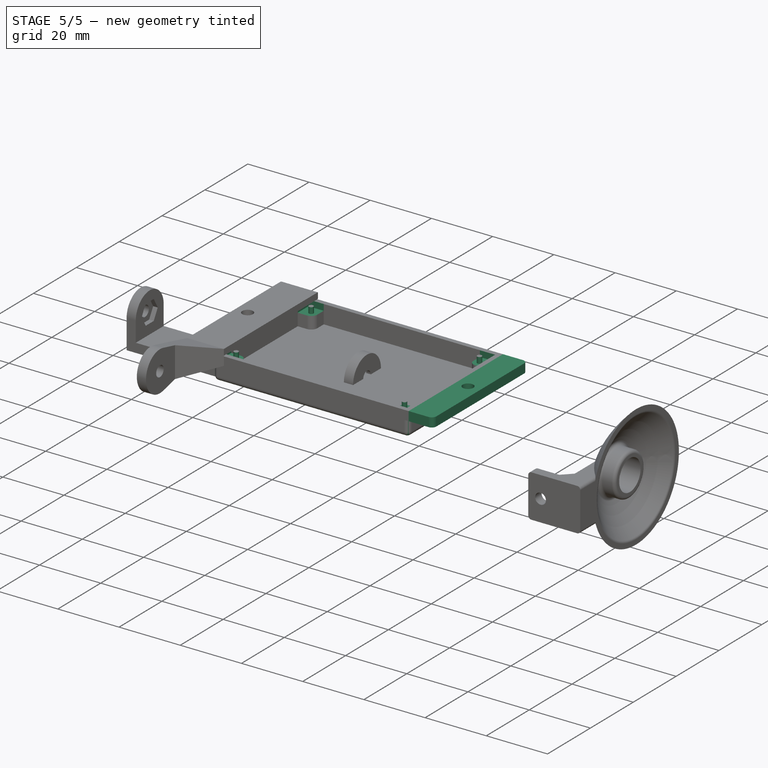
[diagram: stage 5 of 5 — iso view after this stage's code; geometry added in this stage tinted green]
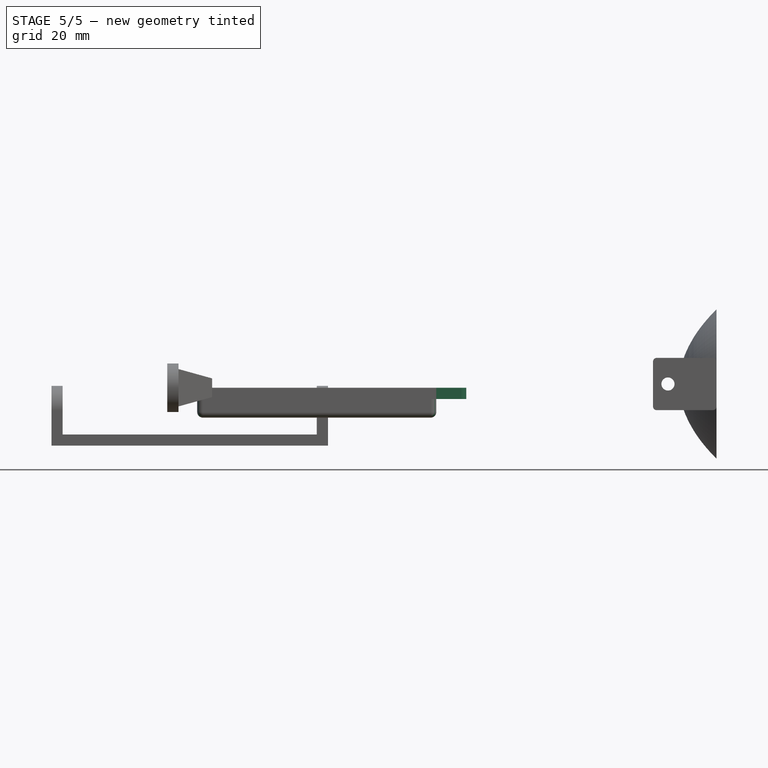
[diagram: stage 5 of 5 — front view after this stage's code; geometry added in this stage tinted green]
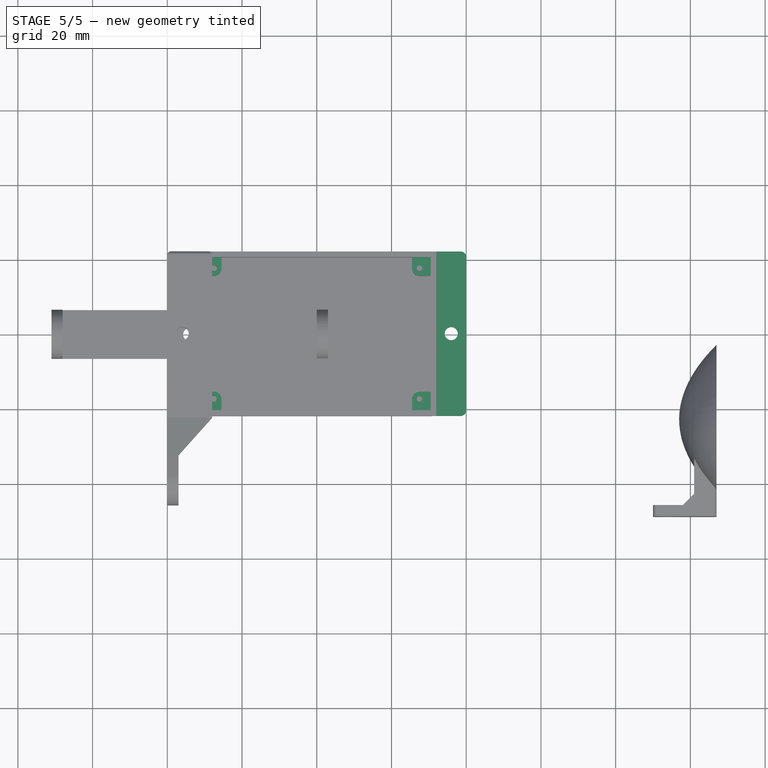
[diagram: stage 5 of 5 — top view after this stage's code; geometry added in this stage tinted green]
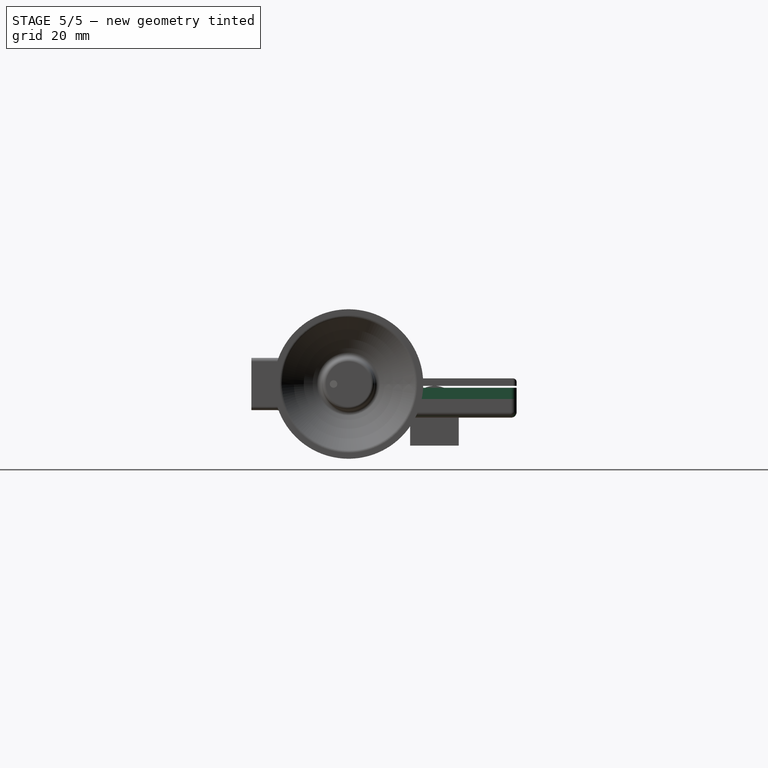
[diagram: stage 5 of 5 — right view after this stage's code; geometry added in this stage tinted green]
FEATURE [Sketcher::SketchObject] Sketch005
  AttachmentOffset = pos=(0,0,4) rot=(0,0,1;0rad)
  ExternalGeometry = -> [Sketch003]
  FullyConstrained = true
  MapMode = 5
  Placement = pos=(0,0,4) rot=(0,0,1;0rad)
  Support = -> [XY_Plane]
  sketch-geometry (4):
    g0: LineSegment StartX=-30.5 StartY=20.5 StartZ=0 EndX=30.5 EndY=20.5 EndZ=0
    g1: LineSegment StartX=30.5 StartY=20.5 StartZ=0 EndX=30.5 EndY=-20.5 EndZ=0
    g2: LineSegment StartX=30.5 StartY=-20.5 StartZ=0 EndX=-30.5 EndY=-20.5 EndZ=0
    g3: LineSegment StartX=-30.5 StartY=-20.5 StartZ=0 EndX=-30.5 EndY=20.5 EndZ=0
  constraints (10):
    c: Coincident(g0,g1)
    c: Coincident(g1,g2)
    c: Coincident(g2,g3)
    c: Coincident(g3,g0)
    c: Horizontal(g0)
    c: Horizontal(g2)
    c: Vertical(g1)
    c: Vertical(g3)
    c: Coincident(g0,g-3)
    c: Coincident(g1,g-4)
FEATURE [PartDesign::Pocket] Pocket
  BaseFeature = -> Pad001
  Length = 5
  Length2 = 100
  Profile = -> Sketch005
  Reversed = true
  Type = 1
FEATURE [Sketcher::SketchObject] Sketch006
  AttachmentOffset = pos=(0,0,3) rot=(0,0,1;0rad)
  ExternalGeometry = -> [Sketch003]
  FullyConstrained = true
  MapMode = 5
  Placement = pos=(0,0,3) rot=(0,0,1;0rad)
  Support = -> [XY_Plane]
  sketch-geometry (8):
    g0: LineSegment StartX=-40 StartY=22 StartZ=0 EndX=40 EndY=22 EndZ=0
    g1: LineSegment StartX=40 StartY=22 StartZ=0 EndX=40 EndY=-22 EndZ=0
    g2: LineSegment StartX=40 StartY=-22 StartZ=0 EndX=-40 EndY=-22 EndZ=0
    g3: LineSegment StartX=-40 StartY=-22 StartZ=0 EndX=-40 EndY=22 EndZ=0
    g4: LineSegment StartX=-30.5 StartY=20.5 StartZ=0 EndX=30.5 EndY=20.5 EndZ=0
    g5: LineSegment StartX=30.5 StartY=20.5 StartZ=0 EndX=30.5 EndY=-20.5 EndZ=0
    g6: LineSegment StartX=30.5 StartY=-20.5 StartZ=0 EndX=-30.5 EndY=-20.5 EndZ=0
    g7: LineSegment StartX=-30.5 StartY=-20.5 StartZ=0 EndX=-30.5 EndY=20.5 EndZ=0
  constraints (20):
    c: Coincident(g0,g1)
    c: Coincident(g1,g2)
    c: Coincident(g2,g3)
    c: Coincident(g3,g0)
    c: Horizontal(g0)
    c: Horizontal(g2)
    c: Vertical(g1)
    c: Vertical(g3)
    c: Coincident(g0,g-3)
    c: Coincident(g1,g-4)
    c: Coincident(g4,g5)
    c: Coincident(g5,g6)
    c: Coincident(g6,g7)
    c: Coincident(g7,g4)
    c: Horizontal(g4)
    c: Horizontal(g6)
    c: Vertical(g5)
    c: Vertical(g7)
    c: Coincident(g4,g-5)
    c: Coincident(g5,g-6)
FEATURE [PartDesign::Pad] Pad002
  BaseFeature = -> Pocket
  Direction = (1,1,1)
  Length = 3
  Length2 = 100
  Profile = -> Sketch006
  Type = 0
FEATURE [Sketcher::SketchObject] Sketch007
  ExternalGeometry = -> [Sketch003]
  FullyConstrained = true
  MapMode = 5
  Support = -> [XY_Plane]
  sketch-geometry (2):
    g0: Circle CenterX=-36 CenterY=0 CenterZ=0 NormalX=0 NormalY=0 NormalZ=1 AngleXU=0 Radius=1.75
    g1: Circle CenterX=36 CenterY=0 CenterZ=0 NormalX=0 NormalY=0 NormalZ=1 AngleXU=0 Radius=1.75
  constraints (4):
    c: Coincident(g0,g-3)
    c: Coincident(g1,g-4)
    c: Equal(g1,g-4)
    c: Equal(g0,g-3)
FEATURE [PartDesign::Pocket] Pocket001
  BaseFeature = -> Pad002
  Length = 5
  Length2 = 100
  Profile = -> Sketch007
  Reversed = true
  Type = 1
FEATURE [Sketcher::SketchObject] Sketch008
  ExternalGeometry = -> [Sketch003]
  FullyConstrained = true
  MapMode = 5
  Support = -> [XY_Plane]
  sketch-geometry (4):
    g0: Circle CenterX=-27.5 CenterY=17.5 CenterZ=0 NormalX=0 NormalY=0 NormalZ=1 AngleXU=0 Radius=0.75
    g1: Circle CenterX=-27.5 CenterY=-17.5 CenterZ=0 NormalX=0 NormalY=0 NormalZ=1 AngleXU=0 Radius=0.75
    g2: Circle CenterX=27.5 CenterY=-17.5 CenterZ=0 NormalX=0 NormalY=0 NormalZ=1 AngleXU=0 Radius=0.75
    g3: Circle CenterX=27.5 CenterY=17.5 CenterZ=0 NormalX=0 NormalY=0 NormalZ=1 AngleXU=0 Radius=0.75
  constraints (8):
    c: Coincident(g0,g-3)
    c: Coincident(g1,g-4)
    c: Coincident(g2,g-5)
    c: Coincident(g3,g-6)
    c: Equal(g2,g3)
    c: Equal(g3,g1)
    c: Equal(g1,g0)
    c: Equal(g0,g-3)
FEATURE [PartDesign::Pad] Pad003
  BaseFeature = -> Pocket001
  Direction = (1,1,1)
  Length = 6
  Length2 = 100
  Profile = -> Sketch008
  Type = 0
FEATURE [Sketcher::SketchObject] Sketch009
  AttachmentOffset = pos=(0,0,3) rot=(0,0,1;0rad)
  ExternalGeometry = -> [Sketch003]
  FullyConstrained = true
  MapMode = 5
  Placement = pos=(0,0,3) rot=(0,0,1;0rad)
  Support = -> [XY_Plane]
  sketch-geometry (14):
    g0: LineSegment StartX=-36 StartY=-3.75278 StartZ=0 EndX=-32.75 EndY=-1.87639 EndZ=0
    g1: LineSegment StartX=-32.75 StartY=-1.87639 StartZ=0 EndX=-32.75 EndY=1.87639 EndZ=0
    g2: LineSegment StartX=-32.75 StartY=1.87639 StartZ=0 EndX=-36 EndY=3.75278 EndZ=0
    g3: LineSegment StartX=-36 StartY=3.75278 StartZ=0 EndX=-39.25 EndY=1.87639 EndZ=0
    g4: LineSegment StartX=-39.25 StartY=1.87639 StartZ=0 EndX=-39.25 EndY=-1.87639 EndZ=0
    g5: LineSegment StartX=-39.25 StartY=-1.87639 StartZ=0 EndX=-36 EndY=-3.75278 EndZ=0
    g6: Circle CenterX=-36 CenterY=0 CenterZ=0 NormalX=0 NormalY=0 NormalZ=1 AngleXU=0 Radius=3.75278
    g7: LineSegment StartX=36 StartY=-3.75278 StartZ=0 EndX=39.25 EndY=-1.87639 EndZ=0
    g8: LineSegment StartX=39.25 StartY=-1.87639 StartZ=0 EndX=39.25 EndY=1.87639 EndZ=0
    g9: LineSegment StartX=39.25 StartY=1.87639 StartZ=0 EndX=36 EndY=3.75278 EndZ=0
    g10: LineSegment StartX=36 StartY=3.75278 StartZ=0 EndX=32.75 EndY=1.87639 EndZ=0
    g11: LineSegment StartX=32.75 StartY=1.87639 StartZ=0 EndX=32.75 EndY=-1.87639 EndZ=0
    g12: LineSegment StartX=32.75 StartY=-1.87639 StartZ=0 EndX=36 EndY=-3.75278 EndZ=0
    g13: Circle CenterX=36 CenterY=0 CenterZ=0 NormalX=0 NormalY=0 NormalZ=1 AngleXU=0 Radius=3.75278
  constraints (30):
    c: Coincident(g0,g1)
    c: Coincident(g1,g2)
    c: Coincident(g2,g3)
    c: Coincident(g3,g4)
    c: Coincident(g4,g5)
    c: Coincident(g5,g0)
    c: Equal(g0, g1-g5) x5
    c: PointOnObject(g0,g6)
    c: PointOnObject(g1,g6)
    c: PointOnObject(g2,g6)
    c: PointOnObject(g3,g6)
    c: PointOnObject(g4,g6)
    c: PointOnObject(g5,g6)
    c: Coincident(g6,g-9)
    c: Coincident(g5,g-4)
    c: Coincident(g7,g8)
    c: Coincident(g8,g9)
    c: Coincident(g9,g10)
    c: Coincident(g10,g11)
    c: Coincident(g11,g12)
    c: Coincident(g12,g7)
    c: Equal(g7, g8-g12) x5
    c: PointOnObject(g7,g13)
    c: PointOnObject(g8,g13)
    c: PointOnObject(g9,g13)
    c: PointOnObject(g10,g13)
    c: PointOnObject(g11,g13)
    c: PointOnObject(g12,g13)
    c: Coincident(g13,g-15)
    c: Coincident(g12,g-11)
FEATURE [PartDesign::Pocket] Pocket002
  BaseFeature = -> Pad003
  Length = 1.5
  Length2 = 100
  Profile = -> Sketch009
  Reversed = true
  Type = 0
FEATURE [PartDesign::Fillet] Fillet
  Base = -> Pocket002 [Face5,Edge17,Edge13,Edge63,Edge60,Edge18,Edge79,Edge11,Edge42]
  BaseFeature = -> Pocket002
  Radius = 1.5
  SupportTransform = false
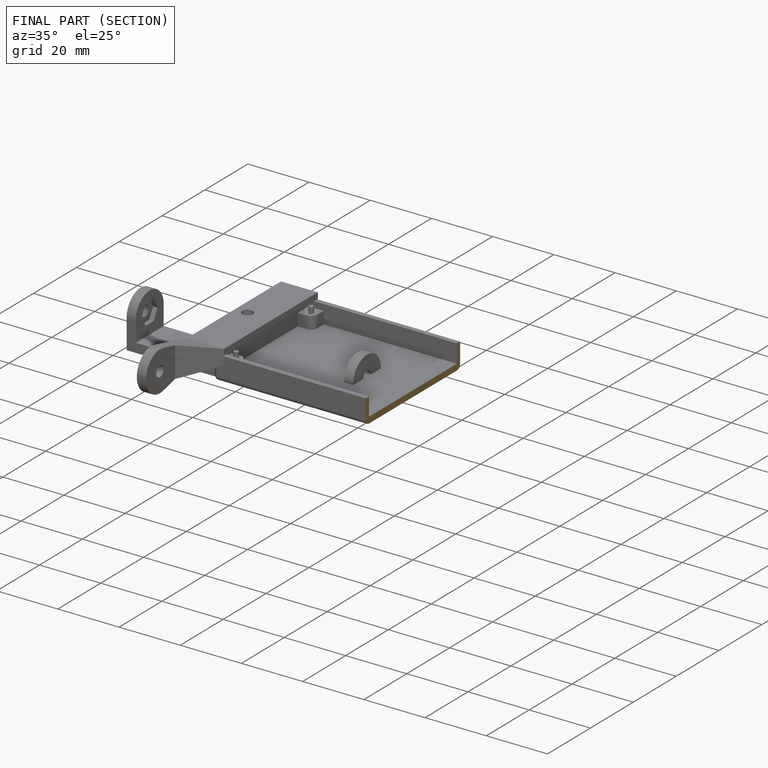
[diagram: finished part — half-section view (interior)]
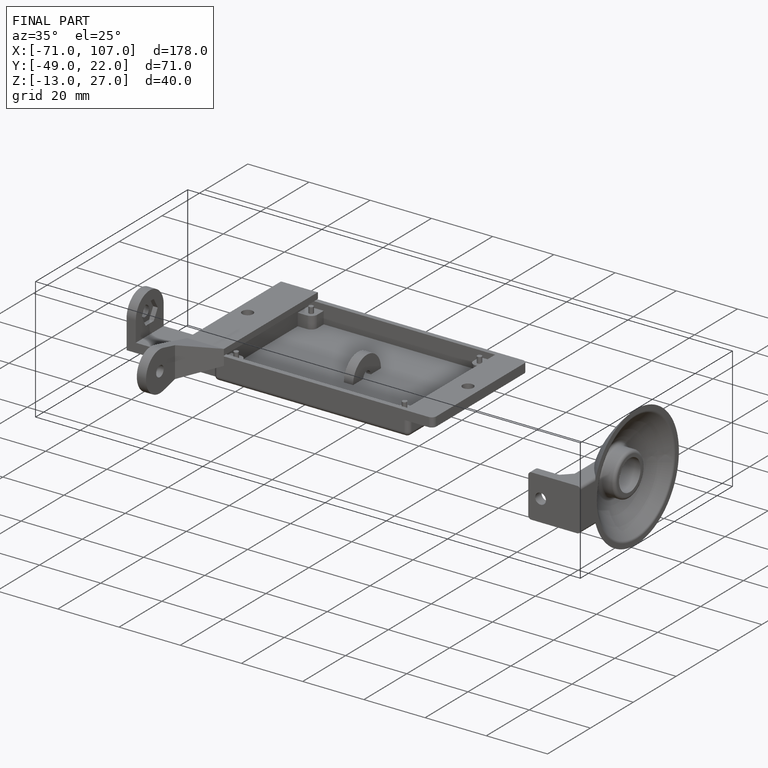
[diagram: finished part — iso view with bounding-box wireframe]
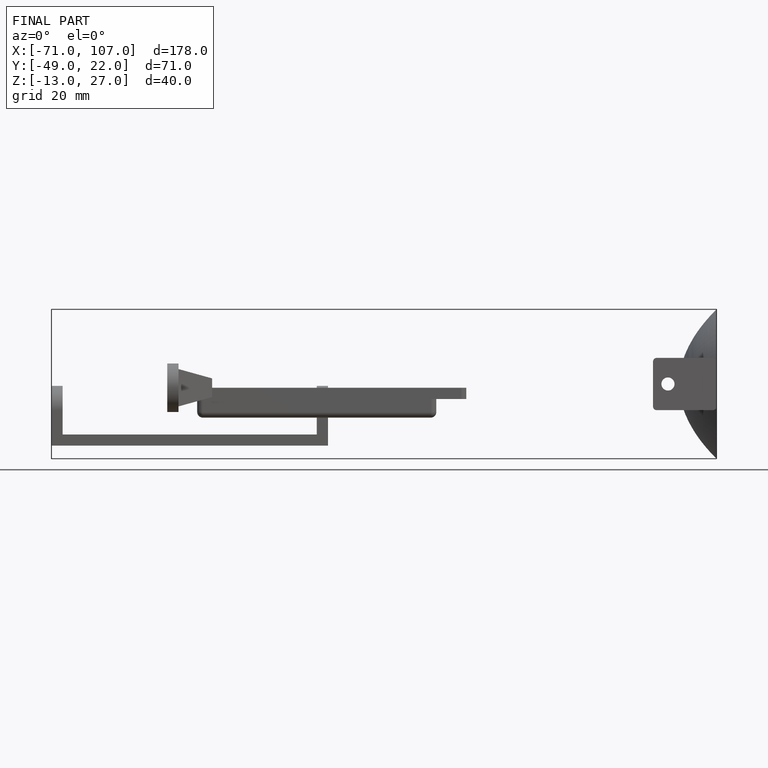
[diagram: finished part — front view with bounding-box wireframe]
